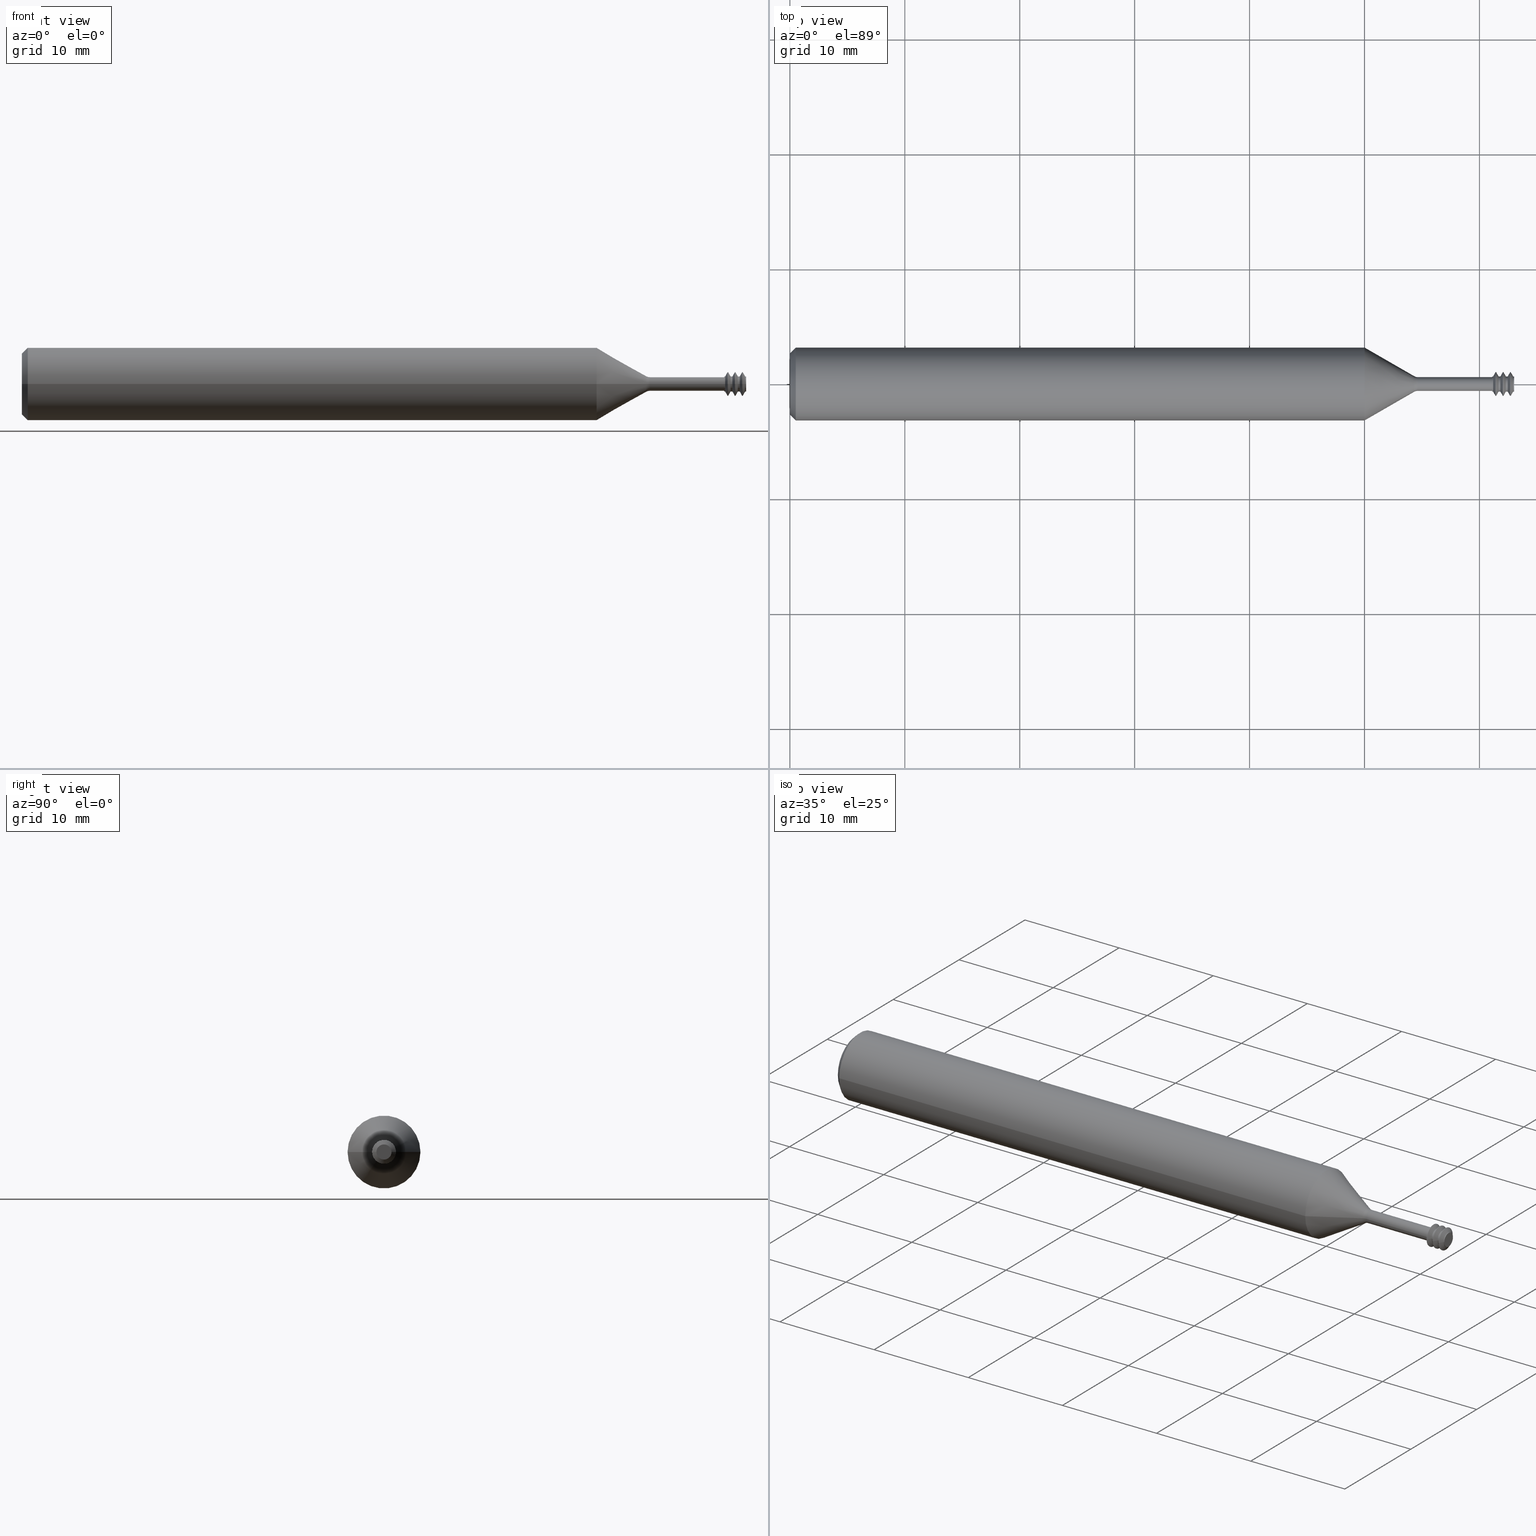
[diagram: canonical four-view strip — front | top / right | iso, engineering-drawing reading convention]
A machine part, canonical four-view strip (front | top / right | iso — engineering-drawing reading convention). The complete STEP part file that produces these views, byte-faithful:
ISO-10303-21;
HEADER;
FILE_DESCRIPTION (( 'STEP AP203' ),
    '1' );
FILE_NAME ('TMLR082-40EL.STEP',
    '2021-09-14T17:58:41',
    ( '' ),
    ( '' ),
    'SwSTEP 2.0',
    'SolidWorks 2020',
    '' );
FILE_SCHEMA (( 'CONFIG_CONTROL_DESIGN' ));
ENDSEC;

DATA;
#1 = FACE_OUTER_BOUND ( 'NONE', #371, .T. ) ;
#2 = ADVANCED_FACE ( 'NONE', ( #55 ), #694, .T. ) ;
#3 = DIRECTION ( 'NONE',  ( 0.000000000000000000, 0.000000000000000000, 1.000000000000000000 ) ) ;
#4 = CARTESIAN_POINT ( 'NONE',  ( 2.409125000000000405, 0.02590937983822152318, 3.172983908677094853E-18 ) ) ;
#5 = ORIENTED_EDGE ( 'NONE', *, *, #823, .F. ) ;
#6 = CARTESIAN_POINT ( 'NONE',  ( 2.459125000000000671, 3.620291162540492838E-18, 0.000000000000000000 ) ) ;
#7 = ORIENTED_EDGE ( 'NONE', *, *, #409, .F. ) ;
#8 = FACE_OUTER_BOUND ( 'NONE', #951, .T. ) ;
#9 = AXIS2_PLACEMENT_3D ( 'NONE', #674, #1001, #118 ) ;
#10 = AXIS2_PLACEMENT_3D ( 'NONE', #468, #402, #708 ) ;
#11 = DATE_AND_TIME ( #1054, #244 ) ;
#12 = ADVANCED_FACE ( 'NONE', ( #1022 ), #199, .T. ) ;
#13 = AXIS2_PLACEMENT_3D ( 'NONE', #320, #331, #220 ) ;
#14 = CARTESIAN_POINT ( 'NONE',  ( 2.419250000000000345, 3.752386085939393770E-18, 0.000000000000000000 ) ) ;
#15 = EDGE_LOOP ( 'NONE', ( #411, #431 ) ) ;
#16 = LINE ( 'NONE', #249, #132 ) ;
#17 = DIRECTION ( 'NONE',  ( 0.000000000000000000, -1.000000000000000000, 0.000000000000000000 ) ) ;
#18 = CARTESIAN_POINT ( 'NONE',  ( 2.427874999999999783, 3.723813829781012394E-18, 0.000000000000000000 ) ) ;
#19 = VERTEX_POINT ( 'NONE', #395 ) ;
#20 = CC_DESIGN_DATE_AND_TIME_ASSIGNMENT ( #184, #683, ( #895 ) ) ;
#21 = EDGE_CURVE ( 'NONE', #332, #702, #214, .T. ) ;
#22 = PERSON_AND_ORGANIZATION_ROLE ( 'creator' ) ;
#23 = DIRECTION ( 'NONE',  ( 0.4962165036752332337, 0.8681988144891280568, 0.000000000000000000 ) ) ;
#24 = AXIS2_PLACEMENT_3D ( 'NONE', #493, #416, #69 ) ;
#25 = FACE_OUTER_BOUND ( 'NONE', #145, .T. ) ;
#26 = ORIENTED_EDGE ( 'NONE', *, *, #539, .T. ) ;
#27 = CARTESIAN_POINT ( 'NONE',  ( 2.356000000000000316, 3.961915964434202595E-18, 0.000000000000000000 ) ) ;
#28 = EDGE_CURVE ( 'NONE', #137, #192, #700, .T. ) ;
#29 = PERSON_AND_ORGANIZATION_ROLE ( 'creator' ) ;
#30 = CYLINDRICAL_SURFACE ( 'NONE', #942, 0.02590937983822151972 ) ;
#31 = AXIS2_PLACEMENT_3D ( 'NONE', #692, #376, #600 ) ;
#32 = LINE ( 'NONE', #362, #626 ) ;
#33 = AXIS2_PLACEMENT_3D ( 'NONE', #185, #1015, #191 ) ;
#34 = ORIENTED_EDGE ( 'NONE', *, *, #807, .T. ) ;
#35 = CIRCLE ( 'NONE', #340, 0.02684936490538899698 ) ;
#36 = COORDINATED_UNIVERSAL_TIME_OFFSET ( 8, 0, .BEHIND. ) ;
#37 = CARTESIAN_POINT ( 'NONE',  ( 2.444250000000000700, 0.04099999999999999478, 5.021051876504147046E-18 ) ) ;
#38 = EDGE_CURVE ( 'NONE', #387, #124, #35, .T. ) ;
#39 = ORIENTED_EDGE ( 'NONE', *, *, #815, .T. ) ;
#40 = ORIENTED_EDGE ( 'NONE', *, *, #343, .T. ) ;
#41 = CARTESIAN_POINT ( 'NONE',  ( 2.406000000000000139, 3.796279696849373925E-18, 0.000000000000000000 ) ) ;
#42 = EDGE_CURVE ( 'NONE', #124, #976, #300, .T. ) ;
#43 = ORIENTED_EDGE ( 'NONE', *, *, #305, .F. ) ;
#44 = DIRECTION ( 'NONE',  ( -1.000000000000000000, 3.312725351696573770E-18, -0.000000000000000000 ) ) ;
#45 = DIRECTION ( 'NONE',  ( -1.000000000000000000, 2.239313081137374464E-19, -0.000000000000000000 ) ) ;
#46 = ORIENTED_EDGE ( 'NONE', *, *, #1024, .F. ) ;
#47 = CARTESIAN_POINT ( 'NONE',  ( 2.444250000000000700, 3.669567952146979050E-18, 0.000000000000000000 ) ) ;
#48 = ADVANCED_FACE ( 'NONE', ( #693 ), #1017, .T. ) ;
#49 = ORIENTED_EDGE ( 'NONE', *, *, #189, .T. ) ;
#50 = CIRCLE ( 'NONE', #307, 0.1048500000000000126 ) ;
#51 = VECTOR ( 'NONE', #454, 39.37007874015748143 ) ;
#52 = CARTESIAN_POINT ( 'NONE',  ( 2.459125000000000671, 0.02590937983822152318, 0.000000000000000000 ) ) ;
#53 = ORIENTED_EDGE ( 'NONE', *, *, #494, .F. ) ;
#54 = ORIENTED_EDGE ( 'NONE', *, *, #42, .T. ) ;
#55 = FACE_OUTER_BOUND ( 'NONE', #284, .T. ) ;
#56 = ORIENTED_EDGE ( 'NONE', *, *, #360, .T. ) ;
#57 = APPROVAL ( #1000, 'UNSPECIFIED' ) ;
#58 = EDGE_CURVE ( 'NONE', #835, #528, #563, .T. ) ;
#59 = CARTESIAN_POINT ( 'NONE',  ( 2.138500000000000068, 4.682433728428207884E-18, 0.000000000000000000 ) ) ;
#60 = CC_DESIGN_APPROVAL ( #370, ( #368 ) ) ;
#61 = ORIENTED_EDGE ( 'NONE', *, *, #311, .F. ) ;
#62 = ORIENTED_EDGE ( 'NONE', *, *, #1029, .T. ) ;
#63 = CARTESIAN_POINT ( 'NONE',  ( 2.442750000000000199, 3.674537040174524642E-18, 0.000000000000000000 ) ) ;
#64 = LINE ( 'NONE', #400, #286 ) ;
#65 = EDGE_LOOP ( 'NONE', ( #491, #1014, #585, #751 ) ) ;
#66 = AXIS2_PLACEMENT_3D ( 'NONE', #915, #651, #977 ) ;
#67 = VECTOR ( 'NONE', #684, 39.37007874015748143 ) ;
#68 = CONICAL_SURFACE ( 'NONE', #763, 0.04099999999999999478, 1.051560874326581851 ) ;
#69 = DIRECTION ( 'NONE',  ( 3.312725351696573770E-18, 1.000000000000000000, 0.000000000000000000 ) ) ;
#70 = EDGE_CURVE ( 'NONE', #857, #275, #102, .T. ) ;
#71 = CARTESIAN_POINT ( 'NONE',  ( 2.467750000000000554, 3.591718906382109922E-18, 0.000000000000000000 ) ) ;
#72 = EDGE_LOOP ( 'NONE', ( #210, #56, #39, #559 ) ) ;
#73 = DIRECTION ( 'NONE',  ( -1.000000000000000000, 2.239313081137374464E-19, -0.000000000000000000 ) ) ;
#74 = CYLINDRICAL_SURFACE ( 'NONE', #621, 0.02590937983822151972 ) ;
#75 = FACE_OUTER_BOUND ( 'NONE', #954, .T. ) ;
#76 = VERTEX_POINT ( 'NONE', #688 ) ;
#77 = SHAPE_DEFINITION_REPRESENTATION ( #937, #1021 ) ;
#78 = CARTESIAN_POINT ( 'NONE',  ( 2.481000000000000316, -0.04100000000000000866, 0.000000000000000000 ) ) ;
#79 = CARTESIAN_POINT ( 'NONE',  ( 2.381000000000000227, 0.02590937983822152318, 3.172983908677094853E-18 ) ) ;
#80 = VERTEX_POINT ( 'NONE', #946 ) ;
#81 = EDGE_CURVE ( 'NONE', #746, #294, #698, .T. ) ;
#82 = ADVANCED_FACE ( 'NONE', ( #541 ), #837, .T. ) ;
#83 = CARTESIAN_POINT ( 'NONE',  ( 2.138500000000000068, -0.02684936490538899351, 0.000000000000000000 ) ) ;
#84 =( CONVERSION_BASED_UNIT ( 'INCH', #992 ) LENGTH_UNIT ( ) NAMED_UNIT ( #628 ) );
#85 = DIRECTION ( 'NONE',  ( -1.000000000000000000, 3.312725351696573770E-18, -0.000000000000000000 ) ) ;
#86 = ORIENTED_EDGE ( 'NONE', *, *, #823, .T. ) ;
#87 = CARTESIAN_POINT ( 'NONE',  ( 2.469250000000000611, 0.04099999999999999478, 5.021051876504147046E-18 ) ) ;
#88 = EDGE_CURVE ( 'NONE', #313, #860, #530, .T. ) ;
#89 = CARTESIAN_POINT ( 'NONE',  ( 2.442750000000000199, 0.04099999999999999478, 5.021051876504147046E-18 ) ) ;
#90 = ORIENTED_EDGE ( 'NONE', *, *, #461, .F. ) ;
#91 = DIRECTION ( 'NONE',  ( -0.4962165036752096969, 0.8681988144891413794, 1.063236899187653683E-16 ) ) ;
#92 = LOCAL_TIME ( 10, 58, 41.00000000000000000, #36 ) ;
#93 = CARTESIAN_POINT ( 'NONE',  ( 2.151000000000000245, 0.000000000000000000, 0.000000000000000000 ) ) ;
#94 = LINE ( 'NONE', #106, #1058 ) ;
#95 = CARTESIAN_POINT ( 'NONE',  ( 2.442750000000000199, -0.04099999999999999478, 0.000000000000000000 ) ) ;
#96 = ORIENTED_EDGE ( 'NONE', *, *, #685, .F. ) ;
#97 = DIRECTION ( 'NONE',  ( -1.000000000000000000, 3.312725351696573770E-18, -0.000000000000000000 ) ) ;
#98 = VECTOR ( 'NONE', #652, 39.37007874015748143 ) ;
#99 = CIRCLE ( 'NONE', #464, 0.02349999999999996189 ) ;
#100 = CC_DESIGN_PERSON_AND_ORGANIZATION_ASSIGNMENT ( #838, #599, ( #610 ) ) ;
#101 = CIRCLE ( 'NONE', #717, 0.02590937983822151972 ) ;
#102 = CIRCLE ( 'NONE', #890, 0.02590937983822151972 ) ;
#103 = CARTESIAN_POINT ( 'NONE',  ( 2.434125000000000316, -0.02590937983822151278, 4.097017892590621527E-18 ) ) ;
#104 = CARTESIAN_POINT ( 'NONE',  ( 2.434125000000000316, 0.02590937983822152318, 0.000000000000000000 ) ) ;
#105 = ORIENTED_EDGE ( 'NONE', *, *, #502, .T. ) ;
#106 = CARTESIAN_POINT ( 'NONE',  ( 2.409125000000000405, -0.02590937983822151278, 3.172983908677094853E-18 ) ) ;
#107 = CARTESIAN_POINT ( 'NONE',  ( 2.477875000000000050, 3.558177562196183725E-18, 0.000000000000000000 ) ) ;
#108 = VERTEX_POINT ( 'NONE', #537 ) ;
#109 = EDGE_CURVE ( 'NONE', #80, #786, #229, .T. ) ;
#110 = DIRECTION ( 'NONE',  ( 0.000000000000000000, -1.000000000000000000, 0.000000000000000000 ) ) ;
#111 = DIRECTION ( 'NONE',  ( 0.000000000000000000, -1.000000000000000000, 0.000000000000000000 ) ) ;
#112 = ORIENTED_EDGE ( 'NONE', *, *, #637, .F. ) ;
#113 = EDGE_CURVE ( 'NONE', #108, #192, #1025, .T. ) ;
#114 = APPLICATION_PROTOCOL_DEFINITION ( 'international standard', 'config_control_design', 1994, #408 ) ;
#115 = CARTESIAN_POINT ( 'NONE',  ( 2.409125000000000405, 3.785927430125321508E-18, 0.000000000000000000 ) ) ;
#116 = VECTOR ( 'NONE', #183, 39.37007874015748143 ) ;
#117 = CARTESIAN_POINT ( 'NONE',  ( 2.481000000000000316, -0.04100000000000000866, 0.000000000000000000 ) ) ;
#118 = DIRECTION ( 'NONE',  ( 0.000000000000000000, 1.000000000000000000, 0.000000000000000000 ) ) ;
#119 = ORIENTED_EDGE ( 'NONE', *, *, #561, .T. ) ;
#120 = EDGE_LOOP ( 'NONE', ( #112, #129, #710, #1048 ) ) ;
#121 = ORIENTED_EDGE ( 'NONE', *, *, #267, .F. ) ;
#122 = EDGE_CURVE ( 'NONE', #405, #976, #235, .T. ) ;
#123 = ORIENTED_EDGE ( 'NONE', *, *, #983, .F. ) ;
#124 = VERTEX_POINT ( 'NONE', #490 ) ;
#125 = CONICAL_SURFACE ( 'NONE', #208, 0.02590937983822151972, 1.051560874326554762 ) ;
#126 = AXIS2_PLACEMENT_3D ( 'NONE', #437, #346, #181 ) ;
#127 = FACE_OUTER_BOUND ( 'NONE', #566, .T. ) ;
#128 = DIRECTION ( 'NONE',  ( -1.000000000000000000, 3.312725351696573770E-18, -0.000000000000000000 ) ) ;
#129 = ORIENTED_EDGE ( 'NONE', *, *, #373, .T. ) ;
#130 = ORIENTED_EDGE ( 'NONE', *, *, #456, .F. ) ;
#131 = EDGE_CURVE ( 'NONE', #835, #80, #315, .T. ) ;
#132 = VECTOR ( 'NONE', #898, 39.37007874015748143 ) ;
#133 = ORIENTED_EDGE ( 'NONE', *, *, #131, .F. ) ;
#134 = ORIENTED_EDGE ( 'NONE', *, *, #81, .F. ) ;
#135 = ORIENTED_EDGE ( 'NONE', *, *, #305, .T. ) ;
#136 = DIRECTION ( 'NONE',  ( 0.000000000000000000, 1.000000000000000000, 0.000000000000000000 ) ) ;
#137 = VERTEX_POINT ( 'NONE', #813 ) ;
#138 = DIRECTION ( 'NONE',  ( -3.312725351696573770E-18, -1.000000000000000000, 0.000000000000000000 ) ) ;
#139 = ADVANCED_FACE ( 'NONE', ( #720 ), #969, .T. ) ;
#140 = EDGE_CURVE ( 'NONE', #788, #263, #808, .T. ) ;
#141 = DIRECTION ( 'NONE',  ( 1.000000000000000000, -3.312725351696573770E-18, 0.000000000000000000 ) ) ;
#142 = LINE ( 'NONE', #79, #645 ) ;
#143 = AXIS2_PLACEMENT_3D ( 'NONE', #308, #281, #630 ) ;
#144 = AXIS2_PLACEMENT_3D ( 'NONE', #341, #522, #844 ) ;
#145 = EDGE_LOOP ( 'NONE', ( #375, #135, #723, #473 ) ) ;
#146 = VECTOR ( 'NONE', #981, 39.37007874015748143 ) ;
#147 = AXIS2_PLACEMENT_3D ( 'NONE', #643, #893, #632 ) ;
#148 = CARTESIAN_POINT ( 'NONE',  ( 2.444250000000000700, 3.669567952146979050E-18, 0.000000000000000000 ) ) ;
#149 = AXIS2_PLACEMENT_3D ( 'NONE', #421, #312, #735 ) ;
#150 = DIRECTION ( 'NONE',  ( -1.000000000000000000, 3.312725351696573770E-18, -0.000000000000000000 ) ) ;
#151 = ADVANCED_FACE ( 'NONE', ( #228 ), #432, .T. ) ;
#152 = CARTESIAN_POINT ( 'NONE',  ( 2.469250000000000611, 3.586749818354565100E-18, 0.000000000000000000 ) ) ;
#153 = ORIENTED_EDGE ( 'NONE', *, *, #594, .F. ) ;
#154 = CARTESIAN_POINT ( 'NONE',  ( 0.02000000000000005940, 0.1248500000000000026, 0.000000000000000000 ) ) ;
#155 = EDGE_CURVE ( 'NONE', #294, #746, #974, .T. ) ;
#156 = LINE ( 'NONE', #495, #516 ) ;
#157 = ORIENTED_EDGE ( 'NONE', *, *, #412, .F. ) ;
#158 = LOCAL_TIME ( 10, 58, 41.00000000000000000, #842 ) ;
#159 = DIRECTION ( 'NONE',  ( -0.4962165036752096969, 0.8681988144891413794, 1.063236899187653683E-16 ) ) ;
#160 = CIRCLE ( 'NONE', #126, 0.04099999999999999478 ) ;
#161 = AXIS2_PLACEMENT_3D ( 'NONE', #871, #469, #633 ) ;
#162 = DIRECTION ( 'NONE',  ( 0.000000000000000000, -1.000000000000000000, 0.000000000000000000 ) ) ;
#163 = ORIENTED_EDGE ( 'NONE', *, *, #222, .T. ) ;
#164 = CIRCLE ( 'NONE', #1003, 0.02500000000000007425 ) ;
#165 = CIRCLE ( 'NONE', #232, 0.02590937983822151972 ) ;
#166 = CARTESIAN_POINT ( 'NONE',  ( 2.406000000000000139, 3.796279696849373925E-18, 0.000000000000000000 ) ) ;
#167 = DIRECTION ( 'NONE',  ( 0.000000000000000000, 1.000000000000000000, 0.000000000000000000 ) ) ;
#168 = EDGE_LOOP ( 'NONE', ( #513, #892, #941, #123 ) ) ;
#169 = CARTESIAN_POINT ( 'NONE',  ( 2.481000000000000316, -7.987212044290486583E-18, 0.000000000000000000 ) ) ;
#170 = EDGE_LOOP ( 'NONE', ( #616, #7, #322, #635 ) ) ;
#171 = CARTESIAN_POINT ( 'NONE',  ( 2.406000000000000139, 3.796279696849373925E-18, 0.000000000000000000 ) ) ;
#172 = PRODUCT_DEFINITION_FORMATION_WITH_SPECIFIED_SOURCE ( 'ANY', '', #610, .NOT_KNOWN. ) ;
#173 = DIRECTION ( 'NONE',  ( -3.312725351696573770E-18, -1.000000000000000000, 0.000000000000000000 ) ) ;
#174 = EDGE_CURVE ( 'NONE', #770, #108, #142, .T. ) ;
#175 = CIRCLE ( 'NONE', #591, 0.04099999999999999478 ) ;
#176 = FACE_OUTER_BOUND ( 'NONE', #168, .T. ) ;
#177 = DIRECTION ( 'NONE',  ( 0.000000000000000000, -1.000000000000000000, 0.000000000000000000 ) ) ;
#178 = ORIENTED_EDGE ( 'NONE', *, *, #70, .F. ) ;
#179 = ADVANCED_FACE ( 'NONE', ( #648 ), #68, .T. ) ;
#180 = CARTESIAN_POINT ( 'NONE',  ( 2.481000000000000316, 3.547825295472131307E-18, 0.000000000000000000 ) ) ;
#181 = DIRECTION ( 'NONE',  ( 0.000000000000000000, -1.000000000000000000, 0.000000000000000000 ) ) ;
#182 = ORIENTED_EDGE ( 'NONE', *, *, #461, .T. ) ;
#183 = DIRECTION ( 'NONE',  ( 0.4962165036752332337, -0.8681988144891280568, 1.063236899187637289E-16 ) ) ;
#184 = DATE_AND_TIME ( #364, #92 ) ;
#185 = CARTESIAN_POINT ( 'NONE',  ( 2.138500000000000068, 4.682433728428207884E-18, 0.000000000000000000 ) ) ;
#186 = DIRECTION ( 'NONE',  ( -1.000000000000000000, 3.312725351696573770E-18, -0.000000000000000000 ) ) ;
#187 = ORIENTED_EDGE ( 'NONE', *, *, #719, .F. ) ;
#188 = CYLINDRICAL_SURFACE ( 'NONE', #955, 0.02349999999999996189 ) ;
#189 = EDGE_CURVE ( 'NONE', #554, #528, #156, .T. ) ;
#190 = CALENDAR_DATE ( 2021, 14, 9 ) ;
#191 = DIRECTION ( 'NONE',  ( 0.000000000000000000, -1.000000000000000000, 0.000000000000000000 ) ) ;
#192 = VERTEX_POINT ( 'NONE', #901 ) ;
#193 = ADVANCED_FACE ( 'NONE', ( #75 ), #417, .T. ) ;
#194 = PERSON_AND_ORGANIZATION ( #774, #524 ) ;
#195 = DIRECTION ( 'NONE',  ( -1.000000000000000000, 3.312725351696573770E-18, -0.000000000000000000 ) ) ;
#196 = AXIS2_PLACEMENT_3D ( 'NONE', #995, #420, #582 ) ;
#197 = CIRCLE ( 'NONE', #798, 0.04099999999999999478 ) ;
#198 = VECTOR ( 'NONE', #852, 39.37007874015748143 ) ;
#199 = CYLINDRICAL_SURFACE ( 'NONE', #535, 0.04100000000000000172 ) ;
#200 = DIRECTION ( 'NONE',  ( -0.4962165036752096969, -0.8681988144891413794, 0.000000000000000000 ) ) ;
#201 = EDGE_LOOP ( 'NONE', ( #914, #452, #796, #872 ) ) ;
#202 = ORIENTED_EDGE ( 'NONE', *, *, #605, .F. ) ;
#203 = CARTESIAN_POINT ( 'NONE',  ( 2.138500000000000068, 0.02684936490538900045, 3.288098879052391398E-18 ) ) ;
#204 = CARTESIAN_POINT ( 'NONE',  ( 2.406000000000000139, -0.02590937983822151278, 0.000000000000000000 ) ) ;
#205 = CC_DESIGN_DATE_AND_TIME_ASSIGNMENT ( #583, #323, ( #368 ) ) ;
#206 = EDGE_CURVE ( 'NONE', #993, #690, #581, .T. ) ;
#207 = ORIENTED_EDGE ( 'NONE', *, *, #800, .T. ) ;
#208 = AXIS2_PLACEMENT_3D ( 'NONE', #963, #973, #811 ) ;
#209 = AXIS2_PLACEMENT_3D ( 'NONE', #888, #663, #982 ) ;
#210 = ORIENTED_EDGE ( 'NONE', *, *, #1029, .F. ) ;
#211 = CARTESIAN_POINT ( 'NONE',  ( 2.481000000000000316, -7.987212044290486583E-18, 0.000000000000000000 ) ) ;
#212 = CIRCLE ( 'NONE', #418, 0.04099999999999999478 ) ;
#213 = CONICAL_SURFACE ( 'NONE', #31, 0.04099999999999999478, 1.051560874326581851 ) ;
#214 = LINE ( 'NONE', #545, #198 ) ;
#215 = ORIENTED_EDGE ( 'NONE', *, *, #28, .T. ) ;
#216 = CIRCLE ( 'NONE', #361, 0.04099999999999999478 ) ;
#217 = DIRECTION ( 'NONE',  ( 0.000000000000000000, 1.000000000000000000, 0.000000000000000000 ) ) ;
#218 = FACE_OUTER_BOUND ( 'NONE', #615, .T. ) ;
#219 = EDGE_CURVE ( 'NONE', #19, #809, #401, .T. ) ;
#220 = DIRECTION ( 'NONE',  ( 0.000000000000000000, -1.000000000000000000, 0.000000000000000000 ) ) ;
#221 = ORIENTED_EDGE ( 'NONE', *, *, #140, .F. ) ;
#222 = EDGE_CURVE ( 'NONE', #248, #746, #817, .T. ) ;
#223 = CARTESIAN_POINT ( 'NONE',  ( 2.406000000000000139, 3.796279696849373925E-18, 0.000000000000000000 ) ) ;
#224 = MANIFOLD_SOLID_BREP ( '821F9EE1-EF3A-4969-8BB4-074549C41CA1-GAAFaceID19', #988 ) ;
#225 = DIRECTION ( 'NONE',  ( -1.000000000000000000, 3.312725351696573770E-18, -0.000000000000000000 ) ) ;
#226 = DIRECTION ( 'NONE',  ( 1.000000000000000000, -3.312725351696573770E-18, 0.000000000000000000 ) ) ;
#227 = CARTESIAN_POINT ( 'NONE',  ( 2.459125000000000671, 3.620291162540492838E-18, 0.000000000000000000 ) ) ;
#228 = FACE_OUTER_BOUND ( 'NONE', #253, .T. ) ;
#229 = CIRCLE ( 'NONE', #781, 0.04099999999999999478 ) ;
#230 = CIRCLE ( 'NONE', #531, 0.02590937983822151972 ) ;
#231 = EDGE_LOOP ( 'NONE', ( #924, #619, #961, #1019 ) ) ;
#232 = AXIS2_PLACEMENT_3D ( 'NONE', #612, #266, #618 ) ;
#233 = VECTOR ( 'NONE', #200, 39.37007874015748143 ) ;
#234 = CARTESIAN_POINT ( 'NONE',  ( 2.469250000000000611, 3.586749818354565100E-18, 0.000000000000000000 ) ) ;
#235 = CIRCLE ( 'NONE', #13, 0.1248500000000000026 ) ;
#236 = DIRECTION ( 'NONE',  ( -1.000000000000000000, 3.312725351696573770E-18, -0.000000000000000000 ) ) ;
#237 = CARTESIAN_POINT ( 'NONE',  ( 2.469250000000000611, -0.04099999999999999478, 0.000000000000000000 ) ) ;
#238 = ORIENTED_EDGE ( 'NONE', *, *, #456, .T. ) ;
#239 = LINE ( 'NONE', #654, #449 ) ;
#240 = CARTESIAN_POINT ( 'NONE',  ( 0.000000000000000000, 0.000000000000000000, 0.000000000000000000 ) ) ;
#241 = EDGE_CURVE ( 'NONE', #862, #835, #795, .T. ) ;
#242 = DIRECTION ( 'NONE',  ( 0.000000000000000000, -1.000000000000000000, 0.000000000000000000 ) ) ;
#243 = ORIENTED_EDGE ( 'NONE', *, *, #113, .T. ) ;
#244 = LOCAL_TIME ( 10, 58, 41.00000000000000000, #911 ) ;
#245 = CARTESIAN_POINT ( 'NONE',  ( 2.138500000000000068, 4.682433728428207884E-18, 0.000000000000000000 ) ) ;
#246 = EDGE_CURVE ( 'NONE', #597, #958, #614, .T. ) ;
#247 = DIRECTION ( 'NONE',  ( -1.000000000000000000, 3.312725351696573770E-18, -0.000000000000000000 ) ) ;
#248 = VERTEX_POINT ( 'NONE', #4 ) ;
#249 = CARTESIAN_POINT ( 'NONE',  ( 2.331000000000000405, 0.02590937983822152318, 3.172983908677094853E-18 ) ) ;
#250 = AXIS2_PLACEMENT_3D ( 'NONE', #757, #350, #463 ) ;
#251 = VECTOR ( 'NONE', #550, 39.37007874015748143 ) ;
#252 = DIRECTION ( 'NONE',  ( -1.000000000000000000, 3.312725351696573770E-18, -0.000000000000000000 ) ) ;
#253 = EDGE_LOOP ( 'NONE', ( #691, #26, #336, #458 ) ) ;
#254 = EDGE_CURVE ( 'NONE', #857, #298, #64, .T. ) ;
#255 = ADVANCED_FACE ( 'NONE', ( #176 ), #745, .T. ) ;
#256 = LINE ( 'NONE', #492, #759 ) ;
#257 = DIRECTION ( 'NONE',  ( -1.000000000000000000, 3.312725351696573770E-18, -0.000000000000000000 ) ) ;
#258 = ORIENTED_EDGE ( 'NONE', *, *, #155, .F. ) ;
#259 = DIRECTION ( 'NONE',  ( 0.000000000000000000, -1.000000000000000000, 0.000000000000000000 ) ) ;
#260 = LINE ( 'NONE', #344, #306 ) ;
#261 = EDGE_CURVE ( 'NONE', #985, #294, #94, .T. ) ;
#262 = AXIS2_PLACEMENT_3D ( 'NONE', #59, #303, #709 ) ;
#263 = VERTEX_POINT ( 'NONE', #595 ) ;
#264 = CARTESIAN_POINT ( 'NONE',  ( 2.356000000000000316, -0.02590937983822151278, 0.000000000000000000 ) ) ;
#265 = CALENDAR_DATE ( 2021, 14, 9 ) ;
#266 = DIRECTION ( 'NONE',  ( -1.000000000000000000, 3.312725351696573770E-18, -0.000000000000000000 ) ) ;
#267 = EDGE_CURVE ( 'NONE', #862, #554, #378, .T. ) ;
#268 = DIRECTION ( 'NONE',  ( 0.000000000000000000, -1.000000000000000000, 0.000000000000000000 ) ) ;
#269 = FACE_OUTER_BOUND ( 'NONE', #170, .T. ) ;
#270 = ORIENTED_EDGE ( 'NONE', *, *, #241, .T. ) ;
#271 = CYLINDRICAL_SURFACE ( 'NONE', #714, 0.02590937983822151972 ) ;
#272 = APPROVAL_STATUS ( 'not_yet_approved' ) ;
#273 = DIRECTION ( 'NONE',  ( -1.000000000000000000, 3.312725351696573770E-18, -0.000000000000000000 ) ) ;
#274 = ADVANCED_FACE ( 'NONE', ( #669 ), #870, .T. ) ;
#275 = VERTEX_POINT ( 'NONE', #103 ) ;
#276 = VERTEX_POINT ( 'NONE', #352 ) ;
#277 = COORDINATED_UNIVERSAL_TIME_OFFSET ( 8, 0, .BEHIND. ) ;
#278 = CARTESIAN_POINT ( 'NONE',  ( 0.000000000000000000, 1.176669689303133088E-17, 0.000000000000000000 ) ) ;
#279 = ORIENTED_EDGE ( 'NONE', *, *, #532, .F. ) ;
#280 = FACE_OUTER_BOUND ( 'NONE', #382, .T. ) ;
#281 = DIRECTION ( 'NONE',  ( -1.000000000000000000, 3.312725351696573770E-18, -0.000000000000000000 ) ) ;
#282 = CARTESIAN_POINT ( 'NONE',  ( 2.406000000000000139, 0.1248500000000000026, 1.528971528735470422E-17 ) ) ;
#283 = VECTOR ( 'NONE', #856, 39.37007874015748143 ) ;
#284 = EDGE_LOOP ( 'NONE', ( #821, #1010, #163, #1006 ) ) ;
#285 = DIRECTION ( 'NONE',  ( 0.000000000000000000, -1.000000000000000000, 0.000000000000000000 ) ) ;
#286 = VECTOR ( 'NONE', #1045, 39.37007874015748143 ) ;
#287 = DIRECTION ( 'NONE',  ( 0.000000000000000000, -1.000000000000000000, 0.000000000000000000 ) ) ;
#288 = ORIENTED_EDGE ( 'NONE', *, *, #42, .F. ) ;
#289 = EDGE_CURVE ( 'NONE', #342, #276, #216, .T. ) ;
#290 = DIRECTION ( 'NONE',  ( 0.000000000000000000, 1.000000000000000000, 0.000000000000000000 ) ) ;
#291 = CYLINDRICAL_SURFACE ( 'NONE', #349, 0.1248500000000000026 ) ;
#292 = ORIENTED_EDGE ( 'NONE', *, *, #544, .F. ) ;
#293 = CARTESIAN_POINT ( 'NONE',  ( 2.381000000000000227, -0.02590937983822151278, 0.000000000000000000 ) ) ;
#294 = VERTEX_POINT ( 'NONE', #989 ) ;
#295 = CARTESIAN_POINT ( 'NONE',  ( -3.473392531253858003E-19, -0.1048499999999999988, 1.406506848820735372E-17 ) ) ;
#296 = ADVANCED_FACE ( 'NONE', ( #505 ), #337, .T. ) ;
#297 = CARTESIAN_POINT ( 'NONE',  ( 2.406000000000000139, 3.796279696849373925E-18, 0.000000000000000000 ) ) ;
#298 = VERTEX_POINT ( 'NONE', #89 ) ;
#299 = VECTOR ( 'NONE', #407, 39.37007874015748143 ) ;
#300 = LINE ( 'NONE', #203, #251 ) ;
#301 = EDGE_LOOP ( 'NONE', ( #865, #153, #517, #119 ) ) ;
#302 = DIRECTION ( 'NONE',  ( -1.000000000000000000, 0.000000000000000000, 0.000000000000000000 ) ) ;
#303 = DIRECTION ( 'NONE',  ( -1.000000000000000000, 3.312725351696573770E-18, -0.000000000000000000 ) ) ;
#304 = CIRCLE ( 'NONE', #658, 0.02349999999999996189 ) ;
#305 = EDGE_CURVE ( 'NONE', #76, #501, #1018, .T. ) ;
#306 = VECTOR ( 'NONE', #503, 39.37007874015748143 ) ;
#307 = AXIS2_PLACEMENT_3D ( 'NONE', #278, #391, #869 ) ;
#308 = CARTESIAN_POINT ( 'NONE',  ( 2.417750000000000288, 3.757355173966938591E-18, 0.000000000000000000 ) ) ;
#309 = CARTESIAN_POINT ( 'NONE',  ( 2.151000000000000245, -0.04850000000000000838, 0.000000000000000000 ) ) ;
#310 = DIRECTION ( 'NONE',  ( 0.000000000000000000, -1.000000000000000000, 0.000000000000000000 ) ) ;
#311 = EDGE_CURVE ( 'NONE', #313, #712, #730, .T. ) ;
#312 = DIRECTION ( 'NONE',  ( -1.000000000000000000, 3.312725351696573770E-18, -0.000000000000000000 ) ) ;
#313 = VERTEX_POINT ( 'NONE', #1004 ) ;
#314 = FACE_OUTER_BOUND ( 'NONE', #1053, .T. ) ;
#315 = LINE ( 'NONE', #237, #514 ) ;
#316 = ORIENTED_EDGE ( 'NONE', *, *, #685, .T. ) ;
#317 = VECTOR ( 'NONE', #622, 39.37007874015748854 ) ;
#318 = DIRECTION ( 'NONE',  ( 0.000000000000000000, -0.000000000000000000, -1.000000000000000000 ) ) ;
#319 = DIRECTION ( 'NONE',  ( 0.000000000000000000, -1.000000000000000000, 0.000000000000000000 ) ) ;
#320 = CARTESIAN_POINT ( 'NONE',  ( 1.968757920842117537, 5.244742617304212452E-18, 0.000000000000000000 ) ) ;
#321 = AXIS2_PLACEMENT_3D ( 'NONE', #509, #252, #839 ) ;
#322 = ORIENTED_EDGE ( 'NONE', *, *, #140, .T. ) ;
#323 = DATE_TIME_ROLE ( 'classification_date' ) ;
#324 = AXIS2_PLACEMENT_3D ( 'NONE', #1050, #73, #876 ) ;
#325 = FACE_OUTER_BOUND ( 'NONE', #908, .T. ) ;
#326 = AXIS2_PLACEMENT_3D ( 'NONE', #71, #655, #878 ) ;
#327 = DIRECTION ( 'NONE',  ( -1.000000000000000000, 3.312725351696573770E-18, -0.000000000000000000 ) ) ;
#328 = ORIENTED_EDGE ( 'NONE', *, *, #916, .T. ) ;
#329 = DIRECTION ( 'NONE',  ( 0.000000000000000000, -1.000000000000000000, 0.000000000000000000 ) ) ;
#330 = APPLICATION_PROTOCOL_DEFINITION ( 'international standard', 'config_control_design', 1994, #504 ) ;
#331 = DIRECTION ( 'NONE',  ( -1.000000000000000000, 3.312725351696573770E-18, -0.000000000000000000 ) ) ;
#332 = VERTEX_POINT ( 'NONE', #984 ) ;
#333 = DIRECTION ( 'NONE',  ( -1.000000000000000000, 3.312725351696573770E-18, -0.000000000000000000 ) ) ;
#334 = CIRCLE ( 'NONE', #754, 0.02349999999999993067 ) ;
#335 = EDGE_CURVE ( 'NONE', #958, #597, #868, .T. ) ;
#336 = ORIENTED_EDGE ( 'NONE', *, *, #921, .T. ) ;
#337 = CONICAL_SURFACE ( 'NONE', #144, 0.1248499999999999888, 0.7853981633974466137 ) ;
#338 = LINE ( 'NONE', #991, #905 ) ;
#339 = FACE_OUTER_BOUND ( 'NONE', #72, .T. ) ;
#340 = AXIS2_PLACEMENT_3D ( 'NONE', #783, #777, #1032 ) ;
#341 = CARTESIAN_POINT ( 'NONE',  ( 0.02000000000000005940, 1.170044238599739941E-17, 0.000000000000000000 ) ) ;
#342 = VERTEX_POINT ( 'NONE', #664 ) ;
#343 = EDGE_CURVE ( 'NONE', #276, #342, #212, .T. ) ;
#344 = CARTESIAN_POINT ( 'NONE',  ( 2.481000000000000316, 0.04099999999999999478, 5.021051876504147046E-18 ) ) ;
#345 = CARTESIAN_POINT ( 'NONE',  ( 2.444250000000000700, 3.669567952146979050E-18, 0.000000000000000000 ) ) ;
#346 = DIRECTION ( 'NONE',  ( -1.000000000000000000, 3.312725351696573770E-18, -0.000000000000000000 ) ) ;
#347 = ORIENTED_EDGE ( 'NONE', *, *, #21, .T. ) ;
#348 = PERSON_AND_ORGANIZATION ( #774, #524 ) ;
#349 = AXIS2_PLACEMENT_3D ( 'NONE', #923, #827, #929 ) ;
#350 = DIRECTION ( 'NONE',  ( -1.000000000000000000, 3.312725351696573770E-18, -0.000000000000000000 ) ) ;
#351 = ORIENTED_EDGE ( 'NONE', *, *, #70, .T. ) ;
#352 = CARTESIAN_POINT ( 'NONE',  ( 2.419250000000000345, -0.04099999999999999478, 0.000000000000000000 ) ) ;
#353 = FACE_OUTER_BOUND ( 'NONE', #120, .T. ) ;
#354 = ORIENTED_EDGE ( 'NONE', *, *, #703, .T. ) ;
#355 = AXIS2_PLACEMENT_3D ( 'NONE', #749, #758, #17 ) ;
#356 = AXIS2_PLACEMENT_3D ( 'NONE', #939, #1026, #290 ) ;
#357 = DATE_AND_TIME ( #265, #934 ) ;
#358 = LINE ( 'NONE', #604, #399 ) ;
#359 = APPROVAL ( #272, 'UNSPECIFIED' ) ;
#360 = EDGE_CURVE ( 'NONE', #124, #702, #164, .T. ) ;
#361 = AXIS2_PLACEMENT_3D ( 'NONE', #14, #186, #675 ) ;
#362 = CARTESIAN_POINT ( 'NONE',  ( 2.331000000000000405, -0.02590937983822151278, 0.000000000000000000 ) ) ;
#363 = ORIENTED_EDGE ( 'NONE', *, *, #109, .T. ) ;
#364 = CALENDAR_DATE ( 2021, 14, 9 ) ;
#365 = FACE_OUTER_BOUND ( 'NONE', #506, .T. ) ;
#366 = ORIENTED_EDGE ( 'NONE', *, *, #457, .T. ) ;
#367 = DIRECTION ( 'NONE',  ( 0.000000000000000000, -1.000000000000000000, 0.000000000000000000 ) ) ;
#368 = SECURITY_CLASSIFICATION ( '', '', #520 ) ;
#369 = CONICAL_SURFACE ( 'NONE', #952, 0.04099999999999999478, 1.051560874326581851 ) ;
#370 = APPROVAL ( #434, 'UNSPECIFIED' ) ;
#371 = EDGE_LOOP ( 'NONE', ( #778, #182, #536, #133 ) ) ;
#372 = FACE_OUTER_BOUND ( 'NONE', #660, .T. ) ;
#373 = EDGE_CURVE ( 'NONE', #976, #405, #695, .T. ) ;
#374 = DIRECTION ( 'NONE',  ( -1.000000000000000000, 3.312725351696573770E-18, -0.000000000000000000 ) ) ;
#375 = ORIENTED_EDGE ( 'NONE', *, *, #1038, .F. ) ;
#376 = DIRECTION ( 'NONE',  ( -1.000000000000000000, 3.312725351696573770E-18, -0.000000000000000000 ) ) ;
#377 = AXIS2_PLACEMENT_3D ( 'NONE', #640, #483, #558 ) ;
#378 = CIRCLE ( 'NONE', #646, 0.02590937983822151972 ) ;
#379 = CONICAL_SURFACE ( 'NONE', #578, 0.04099999999999999478, 1.051560874326581851 ) ;
#380 = AXIS2_PLACEMENT_3D ( 'NONE', #148, #704, #1030 ) ;
#381 = DIRECTION ( 'NONE',  ( -1.000000000000000000, 3.312725351696573770E-18, -0.000000000000000000 ) ) ;
#382 = EDGE_LOOP ( 'NONE', ( #292, #347, #157, #221 ) ) ;
#383 = EDGE_CURVE ( 'NONE', #985, #574, #32, .T. ) ;
#384 = CARTESIAN_POINT ( 'NONE',  ( 2.469250000000000611, 0.04099999999999999478, 5.021051876504147046E-18 ) ) ;
#385 = CARTESIAN_POINT ( 'NONE',  ( 2.477875000000000050, -0.02590937983822151278, 0.000000000000000000 ) ) ;
#386 = ORIENTED_EDGE ( 'NONE', *, *, #441, .T. ) ;
#387 = VERTEX_POINT ( 'NONE', #83 ) ;
#388 = EDGE_LOOP ( 'NONE', ( #187, #386, #419, #918 ) ) ;
#389 = EDGE_CURVE ( 'NONE', #137, #770, #230, .T. ) ;
#390 = DESIGN_CONTEXT ( 'detailed design', #408, 'design' ) ;
#391 = DIRECTION ( 'NONE',  ( -1.000000000000000000, 3.312725351696573770E-18, -0.000000000000000000 ) ) ;
#392 = EDGE_CURVE ( 'NONE', #786, #690, #256, .T. ) ;
#393 = DIRECTION ( 'NONE',  ( 1.000000000000000000, -2.239313081137374464E-19, 0.000000000000000000 ) ) ;
#394 = CIRCLE ( 'NONE', #526, 0.02590937983822151972 ) ;
#395 = CARTESIAN_POINT ( 'NONE',  ( 3.473392531253858485E-19, 0.1048500000000000265, 0.000000000000000000 ) ) ;
#396 = ORIENTED_EDGE ( 'NONE', *, *, #373, .F. ) ;
#397 = DIRECTION ( 'NONE',  ( 0.000000000000000000, -1.000000000000000000, 0.000000000000000000 ) ) ;
#398 = VECTOR ( 'NONE', #91, 39.37007874015748143 ) ;
#399 = VECTOR ( 'NONE', #1008, 39.37007874015748143 ) ;
#400 = CARTESIAN_POINT ( 'NONE',  ( 2.434125000000000316, 0.02590937983822152318, 0.000000000000000000 ) ) ;
#401 = CIRCLE ( 'NONE', #925, 0.1048500000000000126 ) ;
#402 = DIRECTION ( 'NONE',  ( 1.000000000000000000, -2.239313081137374464E-19, 0.000000000000000000 ) ) ;
#403 = DIRECTION ( 'NONE',  ( 0.000000000000000000, -1.000000000000000000, 0.000000000000000000 ) ) ;
#404 = CARTESIAN_POINT ( 'NONE',  ( 2.406000000000000139, -0.02590937983822151278, 0.000000000000000000 ) ) ;
#405 = VERTEX_POINT ( 'NONE', #903 ) ;
#406 = CARTESIAN_POINT ( 'NONE',  ( 2.406000000000000139, -0.02349999999999995842, 0.000000000000000000 ) ) ;
#407 = DIRECTION ( 'NONE',  ( -1.000000000000000000, 2.239313081137374464E-19, -0.000000000000000000 ) ) ;
#408 = APPLICATION_CONTEXT ( 'configuration controlled 3d designs of mechanical parts and assemblies' ) ;
#409 = EDGE_CURVE ( 'NONE', #788, #332, #304, .T. ) ;
#410 = DIRECTION ( 'NONE',  ( -1.000000000000000000, 3.312725351696573770E-18, -0.000000000000000000 ) ) ;
#411 = ORIENTED_EDGE ( 'NONE', *, *, #219, .T. ) ;
#412 = EDGE_CURVE ( 'NONE', #263, #702, #833, .T. ) ;
#413 = PERSON_AND_ORGANIZATION ( #774, #524 ) ;
#414 =( GEOMETRIC_REPRESENTATION_CONTEXT ( 3 ) GLOBAL_UNCERTAINTY_ASSIGNED_CONTEXT ( ( #474 ) ) GLOBAL_UNIT_ASSIGNED_CONTEXT ( ( #84, #904, #748 ) ) REPRESENTATION_CONTEXT ( 'NONE', 'WORKASPACE' ) );
#415 = CYLINDRICAL_SURFACE ( 'NONE', #987, 0.02590937983822151972 ) ;
#416 = DIRECTION ( 'NONE',  ( 1.000000000000000000, -3.312725351696573770E-18, 0.000000000000000000 ) ) ;
#417 = CYLINDRICAL_SURFACE ( 'NONE', #661, 0.02590937983822151972 ) ;
#418 = AXIS2_PLACEMENT_3D ( 'NONE', #587, #917, #512 ) ;
#419 = ORIENTED_EDGE ( 'NONE', *, *, #246, .T. ) ;
#420 = DIRECTION ( 'NONE',  ( -1.000000000000000000, 3.312725351696573770E-18, -0.000000000000000000 ) ) ;
#421 = CARTESIAN_POINT ( 'NONE',  ( 0.02000000000000005940, 1.170044238599739941E-17, 0.000000000000000000 ) ) ;
#422 = ORIENTED_EDGE ( 'NONE', *, *, #392, .F. ) ;
#423 = LINE ( 'NONE', #87, #398 ) ;
#424 = ADVANCED_FACE ( 'NONE', ( #1 ), #379, .T. ) ;
#425 = ORIENTED_EDGE ( 'NONE', *, *, #824, .T. ) ;
#426 = APPROVAL_PERSON_ORGANIZATION ( #756, #57, #525 ) ;
#427 = FACE_OUTER_BOUND ( 'NONE', #1028, .T. ) ;
#428 = CIRCLE ( 'NONE', #496, 0.02590937983822151972 ) ;
#429 = CARTESIAN_POINT ( 'NONE',  ( 0.02000000000000005940, 1.170044238599739941E-17, 0.000000000000000000 ) ) ;
#430 = CARTESIAN_POINT ( 'NONE',  ( 2.481000000000000316, -0.02590937983822151278, 0.000000000000000000 ) ) ;
#431 = ORIENTED_EDGE ( 'NONE', *, *, #719, .T. ) ;
#432 = CONICAL_SURFACE ( 'NONE', #832, 0.02590937983822151972, 1.051560874326554762 ) ;
#433 = CARTESIAN_POINT ( 'NONE',  ( 0.02000000000000005940, -0.1248499999999999610, 1.528971528735470422E-17 ) ) ;
#434 = APPROVAL_STATUS ( 'not_yet_approved' ) ;
#435 = EDGE_CURVE ( 'NONE', #248, #1060, #16, .T. ) ;
#436 = DIRECTION ( 'NONE',  ( -4.056918498409499270E-34, -1.224646799147353207E-16, 1.000000000000000000 ) ) ;
#437 = CARTESIAN_POINT ( 'NONE',  ( 2.442750000000000199, 3.674537040174524642E-18, 0.000000000000000000 ) ) ;
#438 = ORIENTED_EDGE ( 'NONE', *, *, #831, .T. ) ;
#439 = DIRECTION ( 'NONE',  ( 1.000000000000000000, -2.239313081137374464E-19, 0.000000000000000000 ) ) ;
#440 = ORIENTED_EDGE ( 'NONE', *, *, #389, .F. ) ;
#441 = EDGE_CURVE ( 'NONE', #809, #597, #507, .T. ) ;
#442 = PERSON_AND_ORGANIZATION ( #774, #524 ) ;
#443 = CONICAL_SURFACE ( 'NONE', #1033, 0.02590937983822151972, 1.051560874326554762 ) ;
#444 = DIRECTION ( 'NONE',  ( 1.000000000000000000, -2.239313081137374464E-19, 0.000000000000000000 ) ) ;
#445 = CARTESIAN_POINT ( 'NONE',  ( 0.02000000000000005940, 1.170044238599739941E-17, 0.000000000000000000 ) ) ;
#446 = DIRECTION ( 'NONE',  ( 0.000000000000000000, -1.000000000000000000, 0.000000000000000000 ) ) ;
#447 = EDGE_LOOP ( 'NONE', ( #540, #354, #523, #86 ) ) ;
#448 = ADVANCED_FACE ( 'NONE', ( #8 ), #920, .T. ) ;
#449 = VECTOR ( 'NONE', #159, 39.37007874015748143 ) ;
#450 = DIRECTION ( 'NONE',  ( -1.000000000000000000, 3.312725351696573770E-18, -0.000000000000000000 ) ) ;
#451 = VECTOR ( 'NONE', #866, 39.37007874015748143 ) ;
#452 = ORIENTED_EDGE ( 'NONE', *, *, #1038, .T. ) ;
#453 = CARTESIAN_POINT ( 'NONE',  ( 2.477875000000000050, 0.02590937983822152318, 3.172983908677094853E-18 ) ) ;
#454 = DIRECTION ( 'NONE',  ( -1.000000000000000000, 2.239313081137374464E-19, -0.000000000000000000 ) ) ;
#455 = LINE ( 'NONE', #863, #731 ) ;
#456 = EDGE_CURVE ( 'NONE', #342, #746, #260, .T. ) ;
#457 = EDGE_CURVE ( 'NONE', #387, #405, #668, .T. ) ;
#458 = ORIENTED_EDGE ( 'NONE', *, *, #254, .F. ) ;
#459 = DIRECTION ( 'NONE',  ( 0.000000000000000000, -1.000000000000000000, 0.000000000000000000 ) ) ;
#460 = ORIENTED_EDGE ( 'NONE', *, *, #502, .F. ) ;
#461 = EDGE_CURVE ( 'NONE', #528, #786, #423, .T. ) ;
#462 = CARTESIAN_POINT ( 'NONE',  ( 2.409125000000000405, 3.785927430125321508E-18, 0.000000000000000000 ) ) ;
#463 = DIRECTION ( 'NONE',  ( 0.000000000000000000, -1.000000000000000000, 0.000000000000000000 ) ) ;
#464 = AXIS2_PLACEMENT_3D ( 'NONE', #847, #682, #919 ) ;
#465 = ADVANCED_FACE ( 'NONE', ( #592 ), #415, .T. ) ;
#466 = CARTESIAN_POINT ( 'NONE',  ( 2.481000000000000316, -7.987212044290486583E-18, 0.000000000000000000 ) ) ;
#467 = ORIENTED_EDGE ( 'NONE', *, *, #254, .T. ) ;
#468 = CARTESIAN_POINT ( 'NONE',  ( 2.406000000000000139, -7.970417196181956951E-18, 0.000000000000000000 ) ) ;
#469 = DIRECTION ( 'NONE',  ( -1.000000000000000000, 3.312725351696573770E-18, -0.000000000000000000 ) ) ;
#470 = ORIENTED_EDGE ( 'NONE', *, *, #412, .T. ) ;
#471 = ORIENTED_EDGE ( 'NONE', *, *, #789, .F. ) ;
#472 = CARTESIAN_POINT ( 'NONE',  ( 2.419250000000000345, 3.752386085939393770E-18, 0.000000000000000000 ) ) ;
#473 = ORIENTED_EDGE ( 'NONE', *, *, #289, .F. ) ;
#474 = UNCERTAINTY_MEASURE_WITH_UNIT (LENGTH_MEASURE( 1.000000000000000082E-05 ), #84, 'distance_accuracy_value', 'NONE');
#475 = ADVANCED_FACE ( 'NONE', ( #427 ), #1056, .T. ) ;
#476 = FACE_BOUND ( 'NONE', #794, .T. ) ;
#477 = FACE_OUTER_BOUND ( 'NONE', #828, .T. ) ;
#478 = DIRECTION ( 'NONE',  ( -1.000000000000000000, 3.312725351696573770E-18, -0.000000000000000000 ) ) ;
#479 = EDGE_CURVE ( 'NONE', #712, #298, #338, .T. ) ;
#480 = CYLINDRICAL_SURFACE ( 'NONE', #967, 0.04100000000000000172 ) ;
#481 = CIRCLE ( 'NONE', #9, 0.02590937983822151972 ) ;
#482 = CIRCLE ( 'NONE', #889, 0.02590937983822151972 ) ;
#483 = DIRECTION ( 'NONE',  ( -1.000000000000000000, 3.312725351696573770E-18, -0.000000000000000000 ) ) ;
#484 = ORIENTED_EDGE ( 'NONE', *, *, #532, .T. ) ;
#485 = VECTOR ( 'NONE', #85, 39.37007874015748143 ) ;
#486 = FACE_OUTER_BOUND ( 'NONE', #804, .T. ) ;
#487 = DIRECTION ( 'NONE',  ( 2.239313081137374464E-19, 1.000000000000000000, 0.000000000000000000 ) ) ;
#488 = PRODUCT_RELATED_PRODUCT_CATEGORY ( 'detail', '', ( #610 ) ) ;
#489 = ADVANCED_FACE ( 'NONE', ( #325 ), #816, .T. ) ;
#490 = CARTESIAN_POINT ( 'NONE',  ( 2.138500000000000068, 0.02684936490538900045, 9.288907083203547422E-18 ) ) ;
#491 = ORIENTED_EDGE ( 'NONE', *, *, #311, .T. ) ;
#492 = CARTESIAN_POINT ( 'NONE',  ( 2.481000000000000316, 0.04099999999999999478, 5.021051876504147046E-18 ) ) ;
#493 = CARTESIAN_POINT ( 'NONE',  ( 1.828541742163614243E-19, 0.1048500000000000126, 0.000000000000000000 ) ) ;
#494 = EDGE_CURVE ( 'NONE', #108, #712, #239, .T. ) ;
#495 = CARTESIAN_POINT ( 'NONE',  ( 2.406000000000000139, 0.02590937983822152318, 3.172983908677094853E-18 ) ) ;
#496 = AXIS2_PLACEMENT_3D ( 'NONE', #18, #665, #177 ) ;
#497 = ORIENTED_EDGE ( 'NONE', *, *, #623, .T. ) ;
#498 = DIRECTION ( 'NONE',  ( -1.000000000000000000, 3.312725351696573770E-18, -0.000000000000000000 ) ) ;
#499 = DIRECTION ( 'NONE',  ( -1.000000000000000000, 3.312725351696573770E-18, -0.000000000000000000 ) ) ;
#500 = AXIS2_PLACEMENT_3D ( 'NONE', #47, #273, #367 ) ;
#501 = VERTEX_POINT ( 'NONE', #511 ) ;
#502 = EDGE_CURVE ( 'NONE', #192, #313, #572, .T. ) ;
#503 = DIRECTION ( 'NONE',  ( -1.000000000000000000, 2.239313081137374464E-19, -0.000000000000000000 ) ) ;
#504 = APPLICATION_CONTEXT ( 'configuration controlled 3d designs of mechanical parts and assemblies' ) ;
#505 = FACE_OUTER_BOUND ( 'NONE', #510, .T. ) ;
#506 = EDGE_LOOP ( 'NONE', ( #948, #589, #34, #470 ) ) ;
#507 = LINE ( 'NONE', #433, #972 ) ;
#508 = APPROVAL_ROLE ( '' ) ;
#509 = CARTESIAN_POINT ( 'NONE',  ( 2.406000000000000139, 3.796279696849373925E-18, 0.000000000000000000 ) ) ;
#510 = EDGE_LOOP ( 'NONE', ( #1041, #653, #760, #686 ) ) ;
#511 = CARTESIAN_POINT ( 'NONE',  ( 2.427874999999999783, -0.02590937983822151278, 0.000000000000000000 ) ) ;
#512 = DIRECTION ( 'NONE',  ( 0.000000000000000000, -1.000000000000000000, 0.000000000000000000 ) ) ;
#513 = ORIENTED_EDGE ( 'NONE', *, *, #122, .T. ) ;
#514 = VECTOR ( 'NONE', #896, 39.37007874015748143 ) ;
#515 = CARTESIAN_POINT ( 'NONE',  ( 2.406000000000000139, 0.02590937983822152318, 3.172983908677094853E-18 ) ) ;
#516 = VECTOR ( 'NONE', #803, 39.37007874015748143 ) ;
#517 = ORIENTED_EDGE ( 'NONE', *, *, #672, .T. ) ;
#518 = EDGE_LOOP ( 'NONE', ( #930, #670, #61, #460 ) ) ;
#519 = LINE ( 'NONE', #529, #116 ) ;
#520 = SECURITY_CLASSIFICATION_LEVEL ( 'unclassified' ) ;
#521 = FACE_OUTER_BOUND ( 'NONE', #902, .T. ) ;
#522 = DIRECTION ( 'NONE',  ( 1.000000000000000000, -3.312725351696573770E-18, 0.000000000000000000 ) ) ;
#523 = ORIENTED_EDGE ( 'NONE', *, *, #383, .T. ) ;
#524 = ORGANIZATION ( 'UNSPECIFIED', 'UNSPECIFIED', '' ) ;
#525 = APPROVAL_ROLE ( '' ) ;
#526 = AXIS2_PLACEMENT_3D ( 'NONE', #223, #956, #217 ) ;
#527 = CARTESIAN_POINT ( 'NONE',  ( 2.467750000000000554, 0.04099999999999999478, 0.000000000000000000 ) ) ;
#528 = VERTEX_POINT ( 'NONE', #453 ) ;
#529 = CARTESIAN_POINT ( 'NONE',  ( 2.434125000000000316, -0.02590937983822151278, 3.172983908677094853E-18 ) ) ;
#530 = LINE ( 'NONE', #117, #51 ) ;
#531 = AXIS2_PLACEMENT_3D ( 'NONE', #6, #333, #819 ) ;
#532 = EDGE_CURVE ( 'NONE', #275, #501, #671, .T. ) ;
#533 = DIRECTION ( 'NONE',  ( -1.000000000000000000, 3.312725351696573770E-18, -0.000000000000000000 ) ) ;
#534 = AXIS2_PLACEMENT_3D ( 'NONE', #234, #567, #552 ) ;
#535 = AXIS2_PLACEMENT_3D ( 'NONE', #466, #45, #459 ) ;
#536 = ORIENTED_EDGE ( 'NONE', *, *, #109, .F. ) ;
#537 = CARTESIAN_POINT ( 'NONE',  ( 2.452875000000000139, 0.02590937983822152318, 3.172983908677094853E-18 ) ) ;
#538 = FACE_OUTER_BOUND ( 'NONE', #447, .T. ) ;
#539 = EDGE_CURVE ( 'NONE', #275, #860, #519, .T. ) ;
#540 = ORIENTED_EDGE ( 'NONE', *, *, #435, .F. ) ;
#541 = FACE_OUTER_BOUND ( 'NONE', #1039, .T. ) ;
#542 = LINE ( 'NONE', #769, #233 ) ;
#543 = CIRCLE ( 'NONE', #792, 0.02590937983822151972 ) ;
#544 = EDGE_CURVE ( 'NONE', #332, #788, #99, .T. ) ;
#545 = CARTESIAN_POINT ( 'NONE',  ( 2.406000000000000139, 0.02349999999999996883, 2.877919977996275975E-18 ) ) ;
#546 = ORIENTED_EDGE ( 'NONE', *, *, #539, .F. ) ;
#547 = DIRECTION ( 'NONE',  ( -1.000000000000000000, 2.239313081137374464E-19, -0.000000000000000000 ) ) ;
#548 = AXIS2_PLACEMENT_3D ( 'NONE', #245, #498, #742 ) ;
#549 = ADVANCED_FACE ( 'NONE', ( #761 ), #271, .T. ) ;
#550 = DIRECTION ( 'NONE',  ( -0.8660254037844368202, 0.5000000000000031086, 6.123233995736804246E-17 ) ) ;
#551 = ORIENTED_EDGE ( 'NONE', *, *, #789, .T. ) ;
#552 = DIRECTION ( 'NONE',  ( 0.000000000000000000, -1.000000000000000000, 0.000000000000000000 ) ) ;
#553 = CARTESIAN_POINT ( 'NONE',  ( 2.444250000000000700, 3.669567952146979050E-18, 0.000000000000000000 ) ) ;
#554 = VERTEX_POINT ( 'NONE', #931 ) ;
#555 = ADVANCED_FACE ( 'NONE', ( #280 ), #188, .T. ) ;
#556 = LINE ( 'NONE', #799, #1034 ) ;
#557 = AXIS2_PLACEMENT_3D ( 'NONE', #957, #393, #487 ) ;
#558 = DIRECTION ( 'NONE',  ( 0.000000000000000000, -1.000000000000000000, 0.000000000000000000 ) ) ;
#559 = ORIENTED_EDGE ( 'NONE', *, *, #807, .F. ) ;
#560 = CC_DESIGN_PERSON_AND_ORGANIZATION_ASSIGNMENT ( #442, #29, ( #895 ) ) ;
#561 = EDGE_CURVE ( 'NONE', #690, #993, #197, .T. ) ;
#562 = CYLINDRICAL_SURFACE ( 'NONE', #209, 0.02590937983822151972 ) ;
#563 = CIRCLE ( 'NONE', #971, 0.02590937983822151972 ) ;
#564 = AXIS2_PLACEMENT_3D ( 'NONE', #445, #577, #268 ) ;
#565 = CARTESIAN_POINT ( 'NONE',  ( 2.409125000000000405, 0.02590937983822152318, 0.000000000000000000 ) ) ;
#566 = EDGE_LOOP ( 'NONE', ( #288, #62, #366, #396 ) ) ;
#567 = DIRECTION ( 'NONE',  ( -1.000000000000000000, 3.312725351696573770E-18, -0.000000000000000000 ) ) ;
#568 = FACE_OUTER_BOUND ( 'NONE', #15, .T. ) ;
#569 = ADVANCED_FACE ( 'NONE', ( #372 ), #213, .T. ) ;
#570 = DIRECTION ( 'NONE',  ( 0.000000000000000000, 1.000000000000000000, 0.000000000000000000 ) ) ;
#571 = ORIENTED_EDGE ( 'NONE', *, *, #267, .T. ) ;
#572 = LINE ( 'NONE', #734, #146 ) ;
#573 = DIRECTION ( 'NONE',  ( 0.000000000000000000, -1.000000000000000000, 0.000000000000000000 ) ) ;
#574 = VERTEX_POINT ( 'NONE', #204 ) ;
#575 = DIRECTION ( 'NONE',  ( 1.000000000000000000, -2.239313081137374464E-19, 0.000000000000000000 ) ) ;
#576 = DIRECTION ( 'NONE',  ( -1.000000000000000000, 3.312725351696573770E-18, -0.000000000000000000 ) ) ;
#577 = DIRECTION ( 'NONE',  ( -1.000000000000000000, 3.312725351696573770E-18, -0.000000000000000000 ) ) ;
#578 = AXIS2_PLACEMENT_3D ( 'NONE', #910, #97, #986 ) ;
#579 = ORIENTED_EDGE ( 'NONE', *, *, #58, .F. ) ;
#580 = ADVANCED_FACE ( 'NONE', ( #933 ), #887, .T. ) ;
#581 = CIRCLE ( 'NONE', #326, 0.04099999999999999478 ) ;
#582 = DIRECTION ( 'NONE',  ( 0.000000000000000000, -1.000000000000000000, 0.000000000000000000 ) ) ;
#583 = DATE_AND_TIME ( #677, #158 ) ;
#584 = DIRECTION ( 'NONE',  ( 1.000000000000000000, -3.312725351696573770E-18, 0.000000000000000000 ) ) ;
#585 = ORIENTED_EDGE ( 'NONE', *, *, #921, .F. ) ;
#586 = CARTESIAN_POINT ( 'NONE',  ( 2.138500000000000068, -0.02684936490538899351, 0.000000000000000000 ) ) ;
#587 = CARTESIAN_POINT ( 'NONE',  ( 2.419250000000000345, 3.752386085939393770E-18, 0.000000000000000000 ) ) ;
#588 = DIRECTION ( 'NONE',  ( -1.000000000000000000, 3.312725351696573770E-18, -0.000000000000000000 ) ) ;
#589 = ORIENTED_EDGE ( 'NONE', *, *, #38, .F. ) ;
#590 = LOCAL_TIME ( 10, 58, 41.00000000000000000, #607 ) ;
#591 = AXIS2_PLACEMENT_3D ( 'NONE', #63, #225, #319 ) ;
#592 = FACE_OUTER_BOUND ( 'NONE', #883, .T. ) ;
#593 = ADVANCED_FACE ( 'NONE', ( #696 ), #940, .T. ) ;
#594 = EDGE_CURVE ( 'NONE', #770, #137, #165, .T. ) ;
#595 = CARTESIAN_POINT ( 'NONE',  ( 2.151000000000000245, -0.02349999999999992373, 0.000000000000000000 ) ) ;
#596 = CARTESIAN_POINT ( 'NONE',  ( 2.419250000000000345, 3.752386085939393770E-18, 0.000000000000000000 ) ) ;
#597 = VERTEX_POINT ( 'NONE', #855 ) ;
#598 = AXIS2_PLACEMENT_3D ( 'NONE', #739, #247, #912 ) ;
#599 = PERSON_AND_ORGANIZATION_ROLE ( 'design_owner' ) ;
#600 = DIRECTION ( 'NONE',  ( 0.000000000000000000, -1.000000000000000000, 0.000000000000000000 ) ) ;
#601 = EDGE_LOOP ( 'NONE', ( #5, #699 ) ) ;
#602 = DIRECTION ( 'NONE',  ( 0.000000000000000000, -1.000000000000000000, 0.000000000000000000 ) ) ;
#603 = APPROVAL_DATE_TIME ( #938, #57 ) ;
#604 = CARTESIAN_POINT ( 'NONE',  ( 2.481000000000000316, -0.04100000000000000866, 0.000000000000000000 ) ) ;
#605 = EDGE_CURVE ( 'NONE', #554, #862, #481, .T. ) ;
#606 = ORIENTED_EDGE ( 'NONE', *, *, #831, .F. ) ;
#607 = COORDINATED_UNIVERSAL_TIME_OFFSET ( 8, 0, .BEHIND. ) ;
#608 = CIRCLE ( 'NONE', #639, 0.02500000000000014364 ) ;
#609 = CARTESIAN_POINT ( 'NONE',  ( 2.151000000000000245, 0.000000000000000000, 0.000000000000000000 ) ) ;
#610 = PRODUCT ( 'TMLR082-40EL', 'TMLR082-40EL', '', ( #738 ) ) ;
#611 = ADVANCED_FACE ( 'NONE', ( #521 ), #843, .T. ) ;
#612 = CARTESIAN_POINT ( 'NONE',  ( 2.459125000000000671, 3.620291162540492838E-18, 0.000000000000000000 ) ) ;
#613 = CONICAL_SURFACE ( 'NONE', #33, 0.02684936490538899698, 0.5235987755983024794 ) ;
#614 = CIRCLE ( 'NONE', #149, 0.1248500000000000026 ) ;
#615 = EDGE_LOOP ( 'NONE', ( #676, #775, #497, #897 ) ) ;
#616 = ORIENTED_EDGE ( 'NONE', *, *, #21, .F. ) ;
#617 = ADVANCED_FACE ( 'NONE', ( #127 ), #613, .T. ) ;
#618 = DIRECTION ( 'NONE',  ( 0.000000000000000000, -1.000000000000000000, 0.000000000000000000 ) ) ;
#619 = ORIENTED_EDGE ( 'NONE', *, *, #261, .T. ) ;
#620 = DIRECTION ( 'NONE',  ( -1.000000000000000000, 3.312725351696573770E-18, -0.000000000000000000 ) ) ;
#621 = AXIS2_PLACEMENT_3D ( 'NONE', #724, #150, #403 ) ;
#622 = DIRECTION ( 'NONE',  ( 0.7071067811865486830, 0.7071067811865462405, 0.000000000000000000 ) ) ;
#623 = EDGE_CURVE ( 'NONE', #1060, #574, #101, .T. ) ;
#624 = AXIS2_PLACEMENT_3D ( 'NONE', #211, #547, #310 ) ;
#625 = DIRECTION ( 'NONE',  ( 1.000000000000000000, -3.312725351696573770E-18, 0.000000000000000000 ) ) ;
#626 = VECTOR ( 'NONE', #907, 39.37007874015748143 ) ;
#627 = DIRECTION ( 'NONE',  ( 0.000000000000000000, -1.000000000000000000, 0.000000000000000000 ) ) ;
#628 = DIMENSIONAL_EXPONENTS ( 1.000000000000000000, 0.000000000000000000, 0.000000000000000000, 0.000000000000000000, 0.000000000000000000, 0.000000000000000000, 0.000000000000000000 ) ;
#629 = CIRCLE ( 'NONE', #250, 0.02590937983822151972 ) ;
#630 = DIRECTION ( 'NONE',  ( 0.000000000000000000, -1.000000000000000000, 0.000000000000000000 ) ) ;
#631 = ORIENTED_EDGE ( 'NONE', *, *, #206, .F. ) ;
#632 = DIRECTION ( 'NONE',  ( 0.000000000000000000, -1.000000000000000000, 0.000000000000000000 ) ) ;
#633 = DIRECTION ( 'NONE',  ( 0.000000000000000000, -1.000000000000000000, 0.000000000000000000 ) ) ;
#634 = CARTESIAN_POINT ( 'NONE',  ( 2.381000000000000227, 3.879097830641787875E-18, 0.000000000000000000 ) ) ;
#635 = ORIENTED_EDGE ( 'NONE', *, *, #815, .F. ) ;
#636 = CC_DESIGN_PERSON_AND_ORGANIZATION_ASSIGNMENT ( #194, #22, ( #172 ) ) ;
#637 = EDGE_CURVE ( 'NONE', #976, #958, #678, .T. ) ;
#638 = FACE_OUTER_BOUND ( 'NONE', #301, .T. ) ;
#639 = AXIS2_PLACEMENT_3D ( 'NONE', #309, #318, #302 ) ;
#640 = CARTESIAN_POINT ( 'NONE',  ( 2.417750000000000288, 3.757355173966938591E-18, 0.000000000000000000 ) ) ;
#641 = ORIENTED_EDGE ( 'NONE', *, *, #642, .T. ) ;
#642 = EDGE_CURVE ( 'NONE', #275, #857, #629, .T. ) ;
#643 = CARTESIAN_POINT ( 'NONE',  ( 2.409125000000000405, 3.785927430125321508E-18, 0.000000000000000000 ) ) ;
#644 = CARTESIAN_POINT ( 'NONE',  ( 1.968757920842117537, 0.1248500000000000026, 1.528971528735470422E-17 ) ) ;
#645 = VECTOR ( 'NONE', #478, 39.37007874015748143 ) ;
#646 = AXIS2_PLACEMENT_3D ( 'NONE', #180, #439, #826 ) ;
#647 = VECTOR ( 'NONE', #962, 39.37007874015748143 ) ;
#648 = FACE_OUTER_BOUND ( 'NONE', #1016, .T. ) ;
#649 = ORIENTED_EDGE ( 'NONE', *, *, #457, .F. ) ;
#650 = AXIS2_PLACEMENT_3D ( 'NONE', #462, #625, #874 ) ;
#651 = DIRECTION ( 'NONE',  ( -1.000000000000000000, 2.239313081137374464E-19, -0.000000000000000000 ) ) ;
#652 = DIRECTION ( 'NONE',  ( -1.000000000000000000, 3.312725351696573770E-18, -0.000000000000000000 ) ) ;
#653 = ORIENTED_EDGE ( 'NONE', *, *, #219, .F. ) ;
#654 = CARTESIAN_POINT ( 'NONE',  ( 2.444250000000000700, 0.04099999999999999478, 5.021051876504147046E-18 ) ) ;
#655 = DIRECTION ( 'NONE',  ( -1.000000000000000000, 3.312725351696573770E-18, -0.000000000000000000 ) ) ;
#656 = ORIENTED_EDGE ( 'NONE', *, *, #873, .T. ) ;
#657 = DIRECTION ( 'NONE',  ( -1.000000000000000000, 2.239313081137374464E-19, -0.000000000000000000 ) ) ;
#658 = AXIS2_PLACEMENT_3D ( 'NONE', #171, #575, #829 ) ;
#659 = DIRECTION ( 'NONE',  ( 0.4962165036752332337, -0.8681988144891280568, 1.063236899187637289E-16 ) ) ;
#660 = EDGE_LOOP ( 'NONE', ( #90, #438, #867, #1031 ) ) ;
#661 = AXIS2_PLACEMENT_3D ( 'NONE', #979, #410, #162 ) ;
#662 = DIRECTION ( 'NONE',  ( -1.000000000000000000, 2.239313081137374464E-19, -0.000000000000000000 ) ) ;
#663 = DIRECTION ( 'NONE',  ( -1.000000000000000000, 3.312725351696573770E-18, -0.000000000000000000 ) ) ;
#664 = CARTESIAN_POINT ( 'NONE',  ( 2.419250000000000345, 0.04099999999999999478, 5.021051876504147046E-18 ) ) ;
#665 = DIRECTION ( 'NONE',  ( -1.000000000000000000, 3.312725351696573770E-18, -0.000000000000000000 ) ) ;
#666 = ORIENTED_EDGE ( 'NONE', *, *, #88, .T. ) ;
#667 = EDGE_CURVE ( 'NONE', #501, #276, #542, .T. ) ;
#668 = LINE ( 'NONE', #586, #1005 ) ;
#669 = FACE_OUTER_BOUND ( 'NONE', #388, .T. ) ;
#670 = ORIENTED_EDGE ( 'NONE', *, *, #494, .T. ) ;
#671 = LINE ( 'NONE', #264, #283 ) ;
#672 = EDGE_CURVE ( 'NONE', #770, #690, #455, .T. ) ;
#673 = APPROVAL_ROLE ( '' ) ;
#674 = CARTESIAN_POINT ( 'NONE',  ( 2.481000000000000316, 3.547825295472131307E-18, 0.000000000000000000 ) ) ;
#675 = DIRECTION ( 'NONE',  ( 0.000000000000000000, -1.000000000000000000, 0.000000000000000000 ) ) ;
#676 = ORIENTED_EDGE ( 'NONE', *, *, #776, .T. ) ;
#677 = CALENDAR_DATE ( 2021, 14, 9 ) ;
#678 = LINE ( 'NONE', #282, #67 ) ;
#679 = ADVANCED_FACE ( 'NONE', ( #538 ), #30, .T. ) ;
#680 = ORIENTED_EDGE ( 'NONE', *, *, #594, .T. ) ;
#681 = ORIENTED_EDGE ( 'NONE', *, *, #561, .F. ) ;
#682 = DIRECTION ( 'NONE',  ( 1.000000000000000000, -2.239313081137374464E-19, 0.000000000000000000 ) ) ;
#683 = DATE_TIME_ROLE ( 'creation_date' ) ;
#684 = DIRECTION ( 'NONE',  ( -1.000000000000000000, 3.312725351696573770E-18, -0.000000000000000000 ) ) ;
#685 = EDGE_CURVE ( 'NONE', #80, #993, #358, .T. ) ;
#686 = ORIENTED_EDGE ( 'NONE', *, *, #335, .T. ) ;
#687 = ORIENTED_EDGE ( 'NONE', *, *, #605, .T. ) ;
#688 = CARTESIAN_POINT ( 'NONE',  ( 2.427874999999999783, 0.02590937983822152318, 3.172983908677094853E-18 ) ) ;
#689 = DIRECTION ( 'NONE',  ( 0.000000000000000000, -1.000000000000000000, 0.000000000000000000 ) ) ;
#690 = VERTEX_POINT ( 'NONE', #527 ) ;
#691 = ORIENTED_EDGE ( 'NONE', *, *, #642, .F. ) ;
#692 = CARTESIAN_POINT ( 'NONE',  ( 2.469250000000000611, 3.586749818354565100E-18, 0.000000000000000000 ) ) ;
#693 = FACE_OUTER_BOUND ( 'NONE', #201, .T. ) ;
#694 = CONICAL_SURFACE ( 'NONE', #650, 0.02590937983822151972, 1.051560874326554762 ) ;
#695 = CIRCLE ( 'NONE', #355, 0.1248500000000000026 ) ;
#696 = FACE_OUTER_BOUND ( 'NONE', #231, .T. ) ;
#697 = DIRECTION ( 'NONE',  ( 0.000000000000000000, -1.000000000000000000, 0.000000000000000000 ) ) ;
#698 = CIRCLE ( 'NONE', #143, 0.04099999999999999478 ) ;
#699 = ORIENTED_EDGE ( 'NONE', *, *, #623, .F. ) ;
#700 = LINE ( 'NONE', #293, #451 ) ;
#701 = CC_DESIGN_PERSON_AND_ORGANIZATION_ASSIGNMENT ( #348, #926, ( #172 ) ) ;
#702 = VERTEX_POINT ( 'NONE', #850 ) ;
#703 = EDGE_CURVE ( 'NONE', #248, #985, #482, .T. ) ;
#704 = DIRECTION ( 'NONE',  ( -1.000000000000000000, 3.312725351696573770E-18, -0.000000000000000000 ) ) ;
#705 = ORIENTED_EDGE ( 'NONE', *, *, #174, .F. ) ;
#706 = ORIENTED_EDGE ( 'NONE', *, *, #392, .T. ) ;
#707 = CC_DESIGN_APPROVAL ( #57, ( #172 ) ) ;
#708 = DIRECTION ( 'NONE',  ( 2.239313081137374464E-19, 1.000000000000000000, 0.000000000000000000 ) ) ;
#709 = DIRECTION ( 'NONE',  ( 0.000000000000000000, -1.000000000000000000, 0.000000000000000000 ) ) ;
#710 = ORIENTED_EDGE ( 'NONE', *, *, #983, .T. ) ;
#711 = CARTESIAN_POINT ( 'NONE',  ( 2.477875000000000050, 3.558177562196183725E-18, 0.000000000000000000 ) ) ;
#712 = VERTEX_POINT ( 'NONE', #37 ) ;
#713 = CARTESIAN_POINT ( 'NONE',  ( 2.151000000000000245, 4.641024661532000524E-18, 0.000000000000000000 ) ) ;
#714 = AXIS2_PLACEMENT_3D ( 'NONE', #27, #936, #602 ) ;
#715 = LINE ( 'NONE', #968, #900 ) ;
#716 = ADVANCED_FACE ( 'NONE', ( #365 ), #762, .F. ) ;
#717 = AXIS2_PLACEMENT_3D ( 'NONE', #944, #444, #947 ) ;
#718 = AXIS2_PLACEMENT_3D ( 'NONE', #634, #975, #242 ) ;
#719 = EDGE_CURVE ( 'NONE', #809, #19, #50, .T. ) ;
#720 = FACE_OUTER_BOUND ( 'NONE', #970, .T. ) ;
#721 = LINE ( 'NONE', #154, #317 ) ;
#722 = DIRECTION ( 'NONE',  ( 0.000000000000000000, -1.000000000000000000, 0.000000000000000000 ) ) ;
#723 = ORIENTED_EDGE ( 'NONE', *, *, #667, .T. ) ;
#724 = CARTESIAN_POINT ( 'NONE',  ( 2.331000000000000405, 4.044734098226616544E-18, 0.000000000000000000 ) ) ;
#725 = CIRCLE ( 'NONE', #161, 0.02590937983822151972 ) ;
#726 = DIRECTION ( 'NONE',  ( 0.4962165036752332337, 0.8681988144891280568, 0.000000000000000000 ) ) ;
#727 = ORIENTED_EDGE ( 'NONE', *, *, #409, .T. ) ;
#728 = DIRECTION ( 'NONE',  ( 0.000000000000000000, -1.000000000000000000, 0.000000000000000000 ) ) ;
#729 = CARTESIAN_POINT ( 'NONE',  ( 2.409125000000000405, -0.02590937983822151278, 0.000000000000000000 ) ) ;
#730 = CIRCLE ( 'NONE', #743, 0.04099999999999999478 ) ;
#731 = VECTOR ( 'NONE', #23, 39.37007874015748143 ) ;
#732 = CARTESIAN_POINT ( 'NONE',  ( 2.406000000000000139, -0.02349999999999995842, 0.000000000000000000 ) ) ;
#733 = EDGE_LOOP ( 'NONE', ( #363, #706, #631, #96 ) ) ;
#734 = CARTESIAN_POINT ( 'NONE',  ( 2.444250000000000700, -0.04099999999999999478, 0.000000000000000000 ) ) ;
#735 = DIRECTION ( 'NONE',  ( 0.000000000000000000, -1.000000000000000000, 0.000000000000000000 ) ) ;
#736 = EDGE_LOOP ( 'NONE', ( #546, #178, #467, #656 ) ) ;
#737 = DIRECTION ( 'NONE',  ( -1.000000000000000000, 3.312725351696573770E-18, -0.000000000000000000 ) ) ;
#738 = MECHANICAL_CONTEXT ( 'NONE', #504, 'mechanical' ) ;
#739 = CARTESIAN_POINT ( 'NONE',  ( 2.427874999999999783, 3.723813829781012394E-18, 0.000000000000000000 ) ) ;
#740 = AXIS2_PLACEMENT_3D ( 'NONE', #297, #752, #780 ) ;
#741 = ORIENTED_EDGE ( 'NONE', *, *, #672, .F. ) ;
#742 = DIRECTION ( 'NONE',  ( 0.000000000000000000, -1.000000000000000000, 0.000000000000000000 ) ) ;
#743 = AXIS2_PLACEMENT_3D ( 'NONE', #345, #257, #111 ) ;
#744 = ADVANCED_FACE ( 'NONE', ( #476, #797 ), #966, .F. ) ;
#745 = CYLINDRICAL_SURFACE ( 'NONE', #321, 0.1248500000000000026 ) ;
#746 = VERTEX_POINT ( 'NONE', #790 ) ;
#747 = CIRCLE ( 'NONE', #380, 0.04099999999999999478 ) ;
#748 =( NAMED_UNIT ( * ) SI_UNIT ( $, .STERADIAN. ) SOLID_ANGLE_UNIT ( ) );
#749 = CARTESIAN_POINT ( 'NONE',  ( 1.968757920842117537, 5.244742617304212452E-18, 0.000000000000000000 ) ) ;
#750 = CARTESIAN_POINT ( 'NONE',  ( 2.459125000000000671, -0.02590937983822151278, 3.172983908677094853E-18 ) ) ;
#751 = ORIENTED_EDGE ( 'NONE', *, *, #88, .F. ) ;
#752 = DIRECTION ( 'NONE',  ( -1.000000000000000000, 3.312725351696573770E-18, -0.000000000000000000 ) ) ;
#753 = ORIENTED_EDGE ( 'NONE', *, *, #189, .F. ) ;
#754 = AXIS2_PLACEMENT_3D ( 'NONE', #713, #1042, #627 ) ;
#755 = AXIS2_PLACEMENT_3D ( 'NONE', #93, #576, #173 ) ;
#756 = PERSON_AND_ORGANIZATION ( #774, #524 ) ;
#757 = CARTESIAN_POINT ( 'NONE',  ( 2.434125000000000316, 3.703109296332907558E-18, 0.000000000000000000 ) ) ;
#758 = DIRECTION ( 'NONE',  ( -1.000000000000000000, 3.312725351696573770E-18, -0.000000000000000000 ) ) ;
#759 = VECTOR ( 'NONE', #657, 39.37007874015748143 ) ;
#760 = ORIENTED_EDGE ( 'NONE', *, *, #965, .T. ) ;
#761 = FACE_OUTER_BOUND ( 'NONE', #990, .T. ) ;
#762 = TOROIDAL_SURFACE ( 'NONE', #836, 0.04850000000000000838, 0.02500000000000007425 ) ;
#763 = AXIS2_PLACEMENT_3D ( 'NONE', #553, #1059, #722 ) ;
#764 = PERSON_AND_ORGANIZATION ( #774, #524 ) ;
#765 = DIRECTION ( 'NONE',  ( 0.000000000000000000, -1.000000000000000000, 0.000000000000000000 ) ) ;
#766 = EDGE_CURVE ( 'NONE', #857, #76, #885, .T. ) ;
#767 = ORIENTED_EDGE ( 'NONE', *, *, #241, .F. ) ;
#768 = CARTESIAN_POINT ( 'NONE',  ( 2.406000000000000139, 3.796279696849373925E-18, 0.000000000000000000 ) ) ;
#769 = CARTESIAN_POINT ( 'NONE',  ( 2.419250000000000345, -0.04099999999999999478, 0.000000000000000000 ) ) ;
#770 = VERTEX_POINT ( 'NONE', #52 ) ;
#771 = DIRECTION ( 'NONE',  ( 0.000000000000000000, -1.000000000000000000, 0.000000000000000000 ) ) ;
#772 = CC_DESIGN_SECURITY_CLASSIFICATION ( #368, ( #172 ) ) ;
#773 = ORIENTED_EDGE ( 'NONE', *, *, #479, .F. ) ;
#774 = PERSON ( 'UNSPECIFIED', 'UNSPECIFIED', 'UNSPECIFIED', ('UNSPECIFIED'), ('UNSPECIFIED'), ('UNSPECIFIED') ) ;
#775 = ORIENTED_EDGE ( 'NONE', *, *, #435, .T. ) ;
#776 = EDGE_CURVE ( 'NONE', #985, #248, #906, .T. ) ;
#777 = DIRECTION ( 'NONE',  ( -1.000000000000000000, 3.312725351696573770E-18, -0.000000000000000000 ) ) ;
#778 = ORIENTED_EDGE ( 'NONE', *, *, #58, .T. ) ;
#779 = CIRCLE ( 'NONE', #534, 0.04099999999999999478 ) ;
#780 = DIRECTION ( 'NONE',  ( 0.000000000000000000, -1.000000000000000000, 0.000000000000000000 ) ) ;
#781 = AXIS2_PLACEMENT_3D ( 'NONE', #152, #327, #573 ) ;
#782 = ORIENTED_EDGE ( 'NONE', *, *, #38, .T. ) ;
#783 = CARTESIAN_POINT ( 'NONE',  ( 2.138500000000000068, 4.682433728428207884E-18, 0.000000000000000000 ) ) ;
#784 = ORIENTED_EDGE ( 'NONE', *, *, #864, .F. ) ;
#785 = FACE_OUTER_BOUND ( 'NONE', #733, .T. ) ;
#786 = VERTEX_POINT ( 'NONE', #384 ) ;
#787 = DIRECTION ( 'NONE',  ( 0.000000000000000000, -1.000000000000000000, 0.000000000000000000 ) ) ;
#788 = VERTEX_POINT ( 'NONE', #406 ) ;
#789 = EDGE_CURVE ( 'NONE', #712, #313, #747, .T. ) ;
#790 = CARTESIAN_POINT ( 'NONE',  ( 2.417750000000000288, 0.04099999999999999478, 5.021051876504147046E-18 ) ) ;
#791 = ADVANCED_FACE ( 'NONE', ( #486 ), #805, .T. ) ;
#792 = AXIS2_PLACEMENT_3D ( 'NONE', #107, #588, #446 ) ;
#793 = DIRECTION ( 'NONE',  ( -1.000000000000000000, 2.239313081137374464E-19, -0.000000000000000000 ) ) ;
#794 = EDGE_LOOP ( 'NONE', ( #727, #841 ) ) ;
#795 = LINE ( 'NONE', #404, #485 ) ;
#796 = ORIENTED_EDGE ( 'NONE', *, *, #343, .F. ) ;
#797 = FACE_OUTER_BOUND ( 'NONE', #601, .T. ) ;
#798 = AXIS2_PLACEMENT_3D ( 'NONE', #1020, #44, #285 ) ;
#799 = CARTESIAN_POINT ( 'NONE',  ( 2.419250000000000345, 0.04099999999999999478, 5.021051876504147046E-18 ) ) ;
#800 = EDGE_CURVE ( 'NONE', #786, #80, #779, .T. ) ;
#801 = AXIS2_PLACEMENT_3D ( 'NONE', #41, #533, #689 ) ;
#802 = AXIS2_PLACEMENT_3D ( 'NONE', #949, #861, #960 ) ;
#803 = DIRECTION ( 'NONE',  ( -1.000000000000000000, 3.312725351696573770E-18, -0.000000000000000000 ) ) ;
#804 = EDGE_LOOP ( 'NONE', ( #40, #238, #258, #980 ) ) ;
#805 = CYLINDRICAL_SURFACE ( 'NONE', #324, 0.04100000000000000172 ) ;
#806 = CARTESIAN_POINT ( 'NONE',  ( 2.481000000000000316, -7.987212044290486583E-18, 0.000000000000000000 ) ) ;
#807 = EDGE_CURVE ( 'NONE', #387, #263, #608, .T. ) ;
#808 = LINE ( 'NONE', #732, #98 ) ;
#809 = VERTEX_POINT ( 'NONE', #295 ) ;
#810 = DIRECTION ( 'NONE',  ( 0.7071067811865486830, -0.7071067811865462405, 8.659560562354916834E-17 ) ) ;
#811 = DIRECTION ( 'NONE',  ( 0.000000000000000000, 1.000000000000000000, 0.000000000000000000 ) ) ;
#812 = TOROIDAL_SURFACE ( 'NONE', #755, 0.04850000000000000838, 0.02500000000000007425 ) ;
#813 = CARTESIAN_POINT ( 'NONE',  ( 2.459125000000000671, -0.02590937983822151278, 4.097017892590621527E-18 ) ) ;
#814 = ORIENTED_EDGE ( 'NONE', *, *, #206, .T. ) ;
#815 = EDGE_CURVE ( 'NONE', #702, #263, #334, .T. ) ;
#816 = CYLINDRICAL_SURFACE ( 'NONE', #66, 0.04100000000000000172 ) ;
#817 = LINE ( 'NONE', #565, #943 ) ;
#818 = ORIENTED_EDGE ( 'NONE', *, *, #174, .T. ) ;
#819 = DIRECTION ( 'NONE',  ( 0.000000000000000000, -1.000000000000000000, 0.000000000000000000 ) ) ;
#820 = DIRECTION ( 'NONE',  ( 1.000000000000000000, 0.000000000000000000, 0.000000000000000000 ) ) ;
#821 = ORIENTED_EDGE ( 'NONE', *, *, #261, .F. ) ;
#822 = DIRECTION ( 'NONE',  ( -0.8660254037844368202, -0.5000000000000031086, 0.000000000000000000 ) ) ;
#823 = EDGE_CURVE ( 'NONE', #574, #1060, #394, .T. ) ;
#824 = EDGE_CURVE ( 'NONE', #137, #993, #840, .T. ) ;
#825 = APPROVAL_DATE_TIME ( #11, #370 ) ;
#826 = DIRECTION ( 'NONE',  ( 0.000000000000000000, 1.000000000000000000, 0.000000000000000000 ) ) ;
#827 = DIRECTION ( 'NONE',  ( -1.000000000000000000, 3.312725351696573770E-18, -0.000000000000000000 ) ) ;
#828 = EDGE_LOOP ( 'NONE', ( #571, #687 ) ) ;
#829 = DIRECTION ( 'NONE',  ( 0.000000000000000000, 1.000000000000000000, 0.000000000000000000 ) ) ;
#830 =( LENGTH_UNIT ( ) NAMED_UNIT ( * ) SI_UNIT ( $, .METRE. ) );
#831 = EDGE_CURVE ( 'NONE', #528, #835, #543, .T. ) ;
#832 = AXIS2_PLACEMENT_3D ( 'NONE', #1047, #226, #570 ) ;
#833 = CIRCLE ( 'NONE', #196, 0.02349999999999993067 ) ;
#834 = CARTESIAN_POINT ( 'NONE',  ( 2.151000000000000245, 0.04850000000000000838, 5.939536975864663770E-18 ) ) ;
#835 = VERTEX_POINT ( 'NONE', #385 ) ;
#836 = AXIS2_PLACEMENT_3D ( 'NONE', #609, #195, #880 ) ;
#837 = CONICAL_SURFACE ( 'NONE', #802, 0.02590937983822151972, 1.051560874326554762 ) ;
#838 = PERSON_AND_ORGANIZATION ( #774, #524 ) ;
#839 = DIRECTION ( 'NONE',  ( 0.000000000000000000, -1.000000000000000000, 0.000000000000000000 ) ) ;
#840 = LINE ( 'NONE', #750, #997 ) ;
#841 = ORIENTED_EDGE ( 'NONE', *, *, #544, .T. ) ;
#842 = COORDINATED_UNIVERSAL_TIME_OFFSET ( 8, 0, .BEHIND. ) ;
#843 = CYLINDRICAL_SURFACE ( 'NONE', #801, 0.02590937983822151972 ) ;
#844 = DIRECTION ( 'NONE',  ( 0.000000000000000000, 1.000000000000000000, 0.000000000000000000 ) ) ;
#845 = DIRECTION ( 'NONE',  ( 0.4962165036752332337, -0.8681988144891280568, 1.063236899187637289E-16 ) ) ;
#846 = EDGE_LOOP ( 'NONE', ( #422, #207, #316, #681 ) ) ;
#847 = CARTESIAN_POINT ( 'NONE',  ( 2.406000000000000139, 3.796279696849373925E-18, 0.000000000000000000 ) ) ;
#848 = ADVANCED_FACE ( 'NONE', ( #269 ), #913, .T. ) ;
#849 = PERSON_AND_ORGANIZATION_ROLE ( 'classification_officer' ) ;
#850 = CARTESIAN_POINT ( 'NONE',  ( 2.151000000000000245, 0.02349999999999993414, 3.083009428524334842E-18 ) ) ;
#851 = ORIENTED_EDGE ( 'NONE', *, *, #389, .T. ) ;
#852 = DIRECTION ( 'NONE',  ( -1.000000000000000000, 3.312725351696573770E-18, -0.000000000000000000 ) ) ;
#853 = ADVANCED_FACE ( 'NONE', ( #25 ), #369, .T. ) ;
#854 = AXIS2_PLACEMENT_3D ( 'NONE', #882, #1052, #891 ) ;
#855 = CARTESIAN_POINT ( 'NONE',  ( 0.02000000000000005940, -0.1248499999999999610, 1.528971528735470422E-17 ) ) ;
#856 = DIRECTION ( 'NONE',  ( -1.000000000000000000, 3.312725351696573770E-18, -0.000000000000000000 ) ) ;
#857 = VERTEX_POINT ( 'NONE', #104 ) ;
#858 = CARTESIAN_POINT ( 'NONE',  ( 2.331000000000000405, 4.044734098226616544E-18, 0.000000000000000000 ) ) ;
#859 = ADVANCED_FACE ( 'NONE', ( #353 ), #291, .T. ) ;
#860 = VERTEX_POINT ( 'NONE', #95 ) ;
#861 = DIRECTION ( 'NONE',  ( 1.000000000000000000, -3.312725351696573770E-18, 0.000000000000000000 ) ) ;
#862 = VERTEX_POINT ( 'NONE', #430 ) ;
#863 = CARTESIAN_POINT ( 'NONE',  ( 2.459125000000000671, 0.02590937983822152318, 0.000000000000000000 ) ) ;
#864 = EDGE_CURVE ( 'NONE', #501, #76, #428, .T. ) ;
#865 = ORIENTED_EDGE ( 'NONE', *, *, #824, .F. ) ;
#866 = DIRECTION ( 'NONE',  ( -1.000000000000000000, 3.312725351696573770E-18, -0.000000000000000000 ) ) ;
#867 = ORIENTED_EDGE ( 'NONE', *, *, #131, .T. ) ;
#868 = CIRCLE ( 'NONE', #564, 0.1248500000000000026 ) ;
#869 = DIRECTION ( 'NONE',  ( -3.312725351696573770E-18, -1.000000000000000000, 0.000000000000000000 ) ) ;
#870 = CONICAL_SURFACE ( 'NONE', #1007, 0.1248499999999999888, 0.7853981633974466137 ) ;
#871 = CARTESIAN_POINT ( 'NONE',  ( 2.452875000000000139, 3.640995695988598444E-18, 0.000000000000000000 ) ) ;
#872 = ORIENTED_EDGE ( 'NONE', *, *, #667, .F. ) ;
#873 = EDGE_CURVE ( 'NONE', #298, #860, #160, .T. ) ;
#874 = DIRECTION ( 'NONE',  ( 0.000000000000000000, 1.000000000000000000, 0.000000000000000000 ) ) ;
#875 = ADVANCED_FACE ( 'NONE', ( #477 ), #881, .T. ) ;
#876 = DIRECTION ( 'NONE',  ( 0.000000000000000000, -1.000000000000000000, 0.000000000000000000 ) ) ;
#877 = LINE ( 'NONE', #78, #299 ) ;
#878 = DIRECTION ( 'NONE',  ( 0.000000000000000000, -1.000000000000000000, 0.000000000000000000 ) ) ;
#879 = ORIENTED_EDGE ( 'NONE', *, *, #289, .T. ) ;
#880 = DIRECTION ( 'NONE',  ( -3.312725351696573770E-18, -1.000000000000000000, 0.000000000000000000 ) ) ;
#881 = PLANE ( 'NONE',  #557 ) ;
#882 = CARTESIAN_POINT ( 'NONE',  ( 2.452875000000000139, 3.640995695988598444E-18, 0.000000000000000000 ) ) ;
#883 = EDGE_LOOP ( 'NONE', ( #202, #49, #579, #767 ) ) ;
#884 = AXIS2_PLACEMENT_3D ( 'NONE', #472, #381, #787 ) ;
#885 = LINE ( 'NONE', #1035, #647 ) ;
#886 = ADVANCED_FACE ( 'NONE', ( #785 ), #480, .T. ) ;
#887 = CONICAL_SURFACE ( 'NONE', #500, 0.04099999999999999478, 1.051560874326581851 ) ;
#888 = CARTESIAN_POINT ( 'NONE',  ( 2.356000000000000316, 3.961915964434202595E-18, 0.000000000000000000 ) ) ;
#889 = AXIS2_PLACEMENT_3D ( 'NONE', #115, #450, #765 ) ;
#890 = AXIS2_PLACEMENT_3D ( 'NONE', #1040, #374, #287 ) ;
#891 = DIRECTION ( 'NONE',  ( 0.000000000000000000, -1.000000000000000000, 0.000000000000000000 ) ) ;
#892 = ORIENTED_EDGE ( 'NONE', *, *, #637, .T. ) ;
#893 = DIRECTION ( 'NONE',  ( -1.000000000000000000, 3.312725351696573770E-18, -0.000000000000000000 ) ) ;
#894 = CARTESIAN_POINT ( 'NONE',  ( 0.02000000000000005940, 0.1248500000000000026, 0.000000000000000000 ) ) ;
#895 = PRODUCT_DEFINITION ( 'UNKNOWN', '', #172, #390 ) ;
#896 = DIRECTION ( 'NONE',  ( -0.4962165036752096969, -0.8681988144891413794, 0.000000000000000000 ) ) ;
#897 = ORIENTED_EDGE ( 'NONE', *, *, #383, .F. ) ;
#898 = DIRECTION ( 'NONE',  ( -1.000000000000000000, 3.312725351696573770E-18, -0.000000000000000000 ) ) ;
#899 = CC_DESIGN_APPROVAL ( #359, ( #895 ) ) ;
#900 = VECTOR ( 'NONE', #236, 39.37007874015748143 ) ;
#901 = CARTESIAN_POINT ( 'NONE',  ( 2.452875000000000139, -0.02590937983822151278, 0.000000000000000000 ) ) ;
#902 = EDGE_LOOP ( 'NONE', ( #753, #121, #270, #606 ) ) ;
#903 = CARTESIAN_POINT ( 'NONE',  ( 1.968757920842117537, -0.1248500000000000026, 0.000000000000000000 ) ) ;
#904 =( NAMED_UNIT ( * ) PLANE_ANGLE_UNIT ( ) SI_UNIT ( $, .RADIAN. ) );
#905 = VECTOR ( 'NONE', #1055, 39.37007874015748143 ) ;
#906 = CIRCLE ( 'NONE', #147, 0.02590937983822151972 ) ;
#907 = DIRECTION ( 'NONE',  ( -1.000000000000000000, 3.312725351696573770E-18, -0.000000000000000000 ) ) ;
#908 = EDGE_LOOP ( 'NONE', ( #773, #551, #666, #1009 ) ) ;
#909 = ADVANCED_FACE ( 'NONE', ( #218 ), #74, .T. ) ;
#910 = CARTESIAN_POINT ( 'NONE',  ( 2.469250000000000611, 3.586749818354565100E-18, 0.000000000000000000 ) ) ;
#911 = COORDINATED_UNIVERSAL_TIME_OFFSET ( 8, 0, .BEHIND. ) ;
#912 = DIRECTION ( 'NONE',  ( 0.000000000000000000, -1.000000000000000000, 0.000000000000000000 ) ) ;
#913 = CYLINDRICAL_SURFACE ( 'NONE', #740, 0.02349999999999996189 ) ;
#914 = ORIENTED_EDGE ( 'NONE', *, *, #864, .T. ) ;
#915 = CARTESIAN_POINT ( 'NONE',  ( 2.481000000000000316, -7.987212044290486583E-18, 0.000000000000000000 ) ) ;
#916 = EDGE_CURVE ( 'NONE', #276, #294, #877, .T. ) ;
#917 = DIRECTION ( 'NONE',  ( -1.000000000000000000, 3.312725351696573770E-18, -0.000000000000000000 ) ) ;
#918 = ORIENTED_EDGE ( 'NONE', *, *, #965, .F. ) ;
#919 = DIRECTION ( 'NONE',  ( 0.000000000000000000, 1.000000000000000000, 0.000000000000000000 ) ) ;
#920 = CYLINDRICAL_SURFACE ( 'NONE', #922, 0.04100000000000000172 ) ;
#921 = EDGE_CURVE ( 'NONE', #860, #298, #175, .T. ) ;
#922 = AXIS2_PLACEMENT_3D ( 'NONE', #169, #662, #329 ) ;
#923 = CARTESIAN_POINT ( 'NONE',  ( 2.406000000000000139, 3.796279696849373925E-18, 0.000000000000000000 ) ) ;
#924 = ORIENTED_EDGE ( 'NONE', *, *, #776, .F. ) ;
#925 = AXIS2_PLACEMENT_3D ( 'NONE', #964, #499, #138 ) ;
#926 = PERSON_AND_ORGANIZATION_ROLE ( 'design_supplier' ) ;
#927 = DIRECTION ( 'NONE',  ( -1.000000000000000000, 3.312725351696573770E-18, -0.000000000000000000 ) ) ;
#928 = DIRECTION ( 'NONE',  ( 0.000000000000000000, -1.000000000000000000, -1.224646799147353207E-16 ) ) ;
#929 = DIRECTION ( 'NONE',  ( 0.000000000000000000, -1.000000000000000000, 0.000000000000000000 ) ) ;
#930 = ORIENTED_EDGE ( 'NONE', *, *, #1024, .T. ) ;
#931 = CARTESIAN_POINT ( 'NONE',  ( 2.481000000000000316, 0.02590937983822152318, 3.172983908677094853E-18 ) ) ;
#932 = PERSON_AND_ORGANIZATION ( #774, #524 ) ;
#933 = FACE_OUTER_BOUND ( 'NONE', #518, .T. ) ;
#934 = LOCAL_TIME ( 10, 58, 41.00000000000000000, #277 ) ;
#935 = ORIENTED_EDGE ( 'NONE', *, *, #766, .T. ) ;
#936 = DIRECTION ( 'NONE',  ( -1.000000000000000000, 3.312725351696573770E-18, -0.000000000000000000 ) ) ;
#937 = PRODUCT_DEFINITION_SHAPE ( 'NONE', 'NONE',  #895 ) ;
#938 = DATE_AND_TIME ( #190, #590 ) ;
#939 = CARTESIAN_POINT ( 'NONE',  ( 2.409125000000000405, 3.785927430125321508E-18, 0.000000000000000000 ) ) ;
#940 = CONICAL_SURFACE ( 'NONE', #356, 0.02590937983822151972, 1.051560874326554762 ) ;
#941 = ORIENTED_EDGE ( 'NONE', *, *, #246, .F. ) ;
#942 = AXIS2_PLACEMENT_3D ( 'NONE', #858, #927, #110 ) ;
#943 = VECTOR ( 'NONE', #726, 39.37007874015748143 ) ;
#944 = CARTESIAN_POINT ( 'NONE',  ( 2.406000000000000139, 3.796279696849373925E-18, 0.000000000000000000 ) ) ;
#945 = ORIENTED_EDGE ( 'NONE', *, *, #28, .F. ) ;
#946 = CARTESIAN_POINT ( 'NONE',  ( 2.469250000000000611, -0.04099999999999999478, 0.000000000000000000 ) ) ;
#947 = DIRECTION ( 'NONE',  ( 0.000000000000000000, 1.000000000000000000, 0.000000000000000000 ) ) ;
#948 = ORIENTED_EDGE ( 'NONE', *, *, #360, .F. ) ;
#949 = CARTESIAN_POINT ( 'NONE',  ( 2.459125000000000671, 3.620291162540492838E-18, 0.000000000000000000 ) ) ;
#950 = APPROVAL_PERSON_ORGANIZATION ( #764, #359, #673 ) ;
#951 = EDGE_LOOP ( 'NONE', ( #130, #879, #328, #134 ) ) ;
#952 = AXIS2_PLACEMENT_3D ( 'NONE', #596, #128, #697 ) ;
#953 = CYLINDRICAL_SURFACE ( 'NONE', #624, 0.04100000000000000172 ) ;
#954 = EDGE_LOOP ( 'NONE', ( #851, #818, #46, #945 ) ) ;
#955 = AXIS2_PLACEMENT_3D ( 'NONE', #768, #994, #259 ) ;
#956 = DIRECTION ( 'NONE',  ( 1.000000000000000000, -2.239313081137374464E-19, 0.000000000000000000 ) ) ;
#957 = CARTESIAN_POINT ( 'NONE',  ( 2.481000000000000316, -7.987212044290486583E-18, 0.000000000000000000 ) ) ;
#958 = VERTEX_POINT ( 'NONE', #894 ) ;
#959 = ADVANCED_FACE ( 'NONE', ( #1051 ), #125, .T. ) ;
#960 = DIRECTION ( 'NONE',  ( 0.000000000000000000, 1.000000000000000000, 0.000000000000000000 ) ) ;
#961 = ORIENTED_EDGE ( 'NONE', *, *, #155, .T. ) ;
#962 = DIRECTION ( 'NONE',  ( -1.000000000000000000, 3.312725351696573770E-18, -0.000000000000000000 ) ) ;
#963 = CARTESIAN_POINT ( 'NONE',  ( 2.434125000000000316, 3.703109296332907558E-18, 0.000000000000000000 ) ) ;
#964 = CARTESIAN_POINT ( 'NONE',  ( 0.000000000000000000, 1.176669689303133088E-17, 0.000000000000000000 ) ) ;
#965 = EDGE_CURVE ( 'NONE', #19, #958, #721, .T. ) ;
#966 = PLANE ( 'NONE',  #10 ) ;
#967 = AXIS2_PLACEMENT_3D ( 'NONE', #806, #793, #397 ) ;
#968 = CARTESIAN_POINT ( 'NONE',  ( 2.406000000000000139, -0.1248500000000000026, 0.000000000000000000 ) ) ;
#969 = CYLINDRICAL_SURFACE ( 'NONE', #718, 0.02590937983822151972 ) ;
#970 = EDGE_LOOP ( 'NONE', ( #705, #680, #215, #999 ) ) ;
#971 = AXIS2_PLACEMENT_3D ( 'NONE', #711, #620, #771 ) ;
#972 = VECTOR ( 'NONE', #810, 39.37007874015748854 ) ;
#973 = DIRECTION ( 'NONE',  ( 1.000000000000000000, -3.312725351696573770E-18, 0.000000000000000000 ) ) ;
#974 = CIRCLE ( 'NONE', #377, 0.04099999999999999478 ) ;
#975 = DIRECTION ( 'NONE',  ( -1.000000000000000000, 3.312725351696573770E-18, -0.000000000000000000 ) ) ;
#976 = VERTEX_POINT ( 'NONE', #644 ) ;
#977 = DIRECTION ( 'NONE',  ( 0.000000000000000000, -1.000000000000000000, 0.000000000000000000 ) ) ;
#978 = ADVANCED_FACE ( 'NONE', ( #638 ), #443, .T. ) ;
#979 = CARTESIAN_POINT ( 'NONE',  ( 2.381000000000000227, 3.879097830641787875E-18, 0.000000000000000000 ) ) ;
#980 = ORIENTED_EDGE ( 'NONE', *, *, #916, .F. ) ;
#981 = DIRECTION ( 'NONE',  ( -0.4962165036752096969, -0.8681988144891413794, 0.000000000000000000 ) ) ;
#982 = DIRECTION ( 'NONE',  ( 0.000000000000000000, -1.000000000000000000, 0.000000000000000000 ) ) ;
#983 = EDGE_CURVE ( 'NONE', #405, #597, #715, .T. ) ;
#984 = CARTESIAN_POINT ( 'NONE',  ( 2.406000000000000139, 0.02349999999999996883, 2.877919977996275975E-18 ) ) ;
#985 = VERTEX_POINT ( 'NONE', #729 ) ;
#986 = DIRECTION ( 'NONE',  ( 0.000000000000000000, -1.000000000000000000, 0.000000000000000000 ) ) ;
#987 = AXIS2_PLACEMENT_3D ( 'NONE', #166, #737, #728 ) ;
#988 = CLOSED_SHELL ( 'NONE', ( #555, #1049, #475, #255, #274, #593, #909, #48, #549, #151, #886, #424, #465, #580, #193, #82, #12, #791, #448, #489, #978, #139, #179, #875, #611, #569, #1013, #959, #1044, #853, #679, #2, #1002, #296, #859, #617, #716, #848, #744 ) ) ;
#989 = CARTESIAN_POINT ( 'NONE',  ( 2.417750000000000288, -0.04099999999999999478, 0.000000000000000000 ) ) ;
#990 = EDGE_LOOP ( 'NONE', ( #641, #935, #784, #279 ) ) ;
#991 = CARTESIAN_POINT ( 'NONE',  ( 2.481000000000000316, 0.04099999999999999478, 5.021051876504147046E-18 ) ) ;
#992 = LENGTH_MEASURE_WITH_UNIT ( LENGTH_MEASURE( 0.02539999999999999897 ), #830 );
#993 = VERTEX_POINT ( 'NONE', #1036 ) ;
#994 = DIRECTION ( 'NONE',  ( -1.000000000000000000, 3.312725351696573770E-18, -0.000000000000000000 ) ) ;
#995 = CARTESIAN_POINT ( 'NONE',  ( 2.151000000000000245, 4.641024661532000524E-18, 0.000000000000000000 ) ) ;
#996 = AXIS2_PLACEMENT_3D ( 'NONE', #240, #3, #820 ) ;
#997 = VECTOR ( 'NONE', #845, 39.37007874015748143 ) ;
#998 = CIRCLE ( 'NONE', #262, 0.02684936490538899698 ) ;
#999 = ORIENTED_EDGE ( 'NONE', *, *, #113, .F. ) ;
#1000 = APPROVAL_STATUS ( 'not_yet_approved' ) ;
#1001 = DIRECTION ( 'NONE',  ( 1.000000000000000000, -2.239313081137374464E-19, 0.000000000000000000 ) ) ;
#1002 = ADVANCED_FACE ( 'NONE', ( #568 ), #1043, .F. ) ;
#1003 = AXIS2_PLACEMENT_3D ( 'NONE', #834, #436, #928 ) ;
#1004 = CARTESIAN_POINT ( 'NONE',  ( 2.444250000000000700, -0.04099999999999999478, 0.000000000000000000 ) ) ;
#1005 = VECTOR ( 'NONE', #822, 39.37007874015748143 ) ;
#1006 = ORIENTED_EDGE ( 'NONE', *, *, #81, .T. ) ;
#1007 = AXIS2_PLACEMENT_3D ( 'NONE', #429, #584, #167 ) ;
#1008 = DIRECTION ( 'NONE',  ( -1.000000000000000000, 2.239313081137374464E-19, -0.000000000000000000 ) ) ;
#1009 = ORIENTED_EDGE ( 'NONE', *, *, #873, .F. ) ;
#1010 = ORIENTED_EDGE ( 'NONE', *, *, #703, .F. ) ;
#1011 = APPROVAL_DATE_TIME ( #357, #359 ) ;
#1012 = APPROVAL_PERSON_ORGANIZATION ( #413, #370, #508 ) ;
#1013 = ADVANCED_FACE ( 'NONE', ( #1057 ), #953, .T. ) ;
#1014 = ORIENTED_EDGE ( 'NONE', *, *, #479, .T. ) ;
#1015 = DIRECTION ( 'NONE',  ( -1.000000000000000000, 3.312725351696573770E-18, -0.000000000000000000 ) ) ;
#1016 = EDGE_LOOP ( 'NONE', ( #53, #243, #105, #471 ) ) ;
#1017 = CONICAL_SURFACE ( 'NONE', #884, 0.04099999999999999478, 1.051560874326581851 ) ;
#1018 = CIRCLE ( 'NONE', #598, 0.02590937983822151972 ) ;
#1019 = ORIENTED_EDGE ( 'NONE', *, *, #222, .F. ) ;
#1020 = CARTESIAN_POINT ( 'NONE',  ( 2.467750000000000554, 3.591718906382109922E-18, 0.000000000000000000 ) ) ;
#1021 = ADVANCED_BREP_SHAPE_REPRESENTATION ( 'TMLR082-40EL', ( #224, #996 ), #414 ) ;
#1022 = FACE_OUTER_BOUND ( 'NONE', #65, .T. ) ;
#1023 = ORIENTED_EDGE ( 'NONE', *, *, #766, .F. ) ;
#1024 = EDGE_CURVE ( 'NONE', #192, #108, #725, .T. ) ;
#1025 = CIRCLE ( 'NONE', #854, 0.02590937983822151972 ) ;
#1026 = DIRECTION ( 'NONE',  ( 1.000000000000000000, -3.312725351696573770E-18, 0.000000000000000000 ) ) ;
#1027 = ORIENTED_EDGE ( 'NONE', *, *, #122, .F. ) ;
#1028 = EDGE_LOOP ( 'NONE', ( #782, #54, #1027, #649 ) ) ;
#1029 = EDGE_CURVE ( 'NONE', #124, #387, #998, .T. ) ;
#1030 = DIRECTION ( 'NONE',  ( 0.000000000000000000, -1.000000000000000000, 0.000000000000000000 ) ) ;
#1031 = ORIENTED_EDGE ( 'NONE', *, *, #800, .F. ) ;
#1032 = DIRECTION ( 'NONE',  ( 0.000000000000000000, -1.000000000000000000, 0.000000000000000000 ) ) ;
#1033 = AXIS2_PLACEMENT_3D ( 'NONE', #227, #141, #136 ) ;
#1034 = VECTOR ( 'NONE', #1046, 39.37007874015748143 ) ;
#1035 = CARTESIAN_POINT ( 'NONE',  ( 2.356000000000000316, 0.02590937983822152318, 3.172983908677094853E-18 ) ) ;
#1036 = CARTESIAN_POINT ( 'NONE',  ( 2.467750000000000554, -0.04099999999999999478, 5.021051876504147046E-18 ) ) ;
#1037 = CC_DESIGN_PERSON_AND_ORGANIZATION_ASSIGNMENT ( #932, #849, ( #368 ) ) ;
#1038 = EDGE_CURVE ( 'NONE', #76, #342, #556, .T. ) ;
#1039 = EDGE_LOOP ( 'NONE', ( #440, #425, #814, #741 ) ) ;
#1040 = CARTESIAN_POINT ( 'NONE',  ( 2.434125000000000316, 3.703109296332907558E-18, 0.000000000000000000 ) ) ;
#1041 = ORIENTED_EDGE ( 'NONE', *, *, #441, .F. ) ;
#1042 = DIRECTION ( 'NONE',  ( -1.000000000000000000, 3.312725351696573770E-18, -0.000000000000000000 ) ) ;
#1043 = PLANE ( 'NONE',  #24 ) ;
#1044 = ADVANCED_FACE ( 'NONE', ( #314 ), #562, .T. ) ;
#1045 = DIRECTION ( 'NONE',  ( 0.4962165036752332337, 0.8681988144891280568, 0.000000000000000000 ) ) ;
#1046 = DIRECTION ( 'NONE',  ( -0.4962165036752096969, 0.8681988144891413794, 1.063236899187653683E-16 ) ) ;
#1047 = CARTESIAN_POINT ( 'NONE',  ( 2.434125000000000316, 3.703109296332907558E-18, 0.000000000000000000 ) ) ;
#1048 = ORIENTED_EDGE ( 'NONE', *, *, #335, .F. ) ;
#1049 = ADVANCED_FACE ( 'NONE', ( #339 ), #812, .F. ) ;
#1050 = CARTESIAN_POINT ( 'NONE',  ( 2.481000000000000316, -7.987212044290486583E-18, 0.000000000000000000 ) ) ;
#1051 = FACE_OUTER_BOUND ( 'NONE', #736, .T. ) ;
#1052 = DIRECTION ( 'NONE',  ( -1.000000000000000000, 3.312725351696573770E-18, -0.000000000000000000 ) ) ;
#1053 = EDGE_LOOP ( 'NONE', ( #1023, #351, #484, #43 ) ) ;
#1054 = CALENDAR_DATE ( 2021, 14, 9 ) ;
#1055 = DIRECTION ( 'NONE',  ( -1.000000000000000000, 2.239313081137374464E-19, -0.000000000000000000 ) ) ;
#1056 = CONICAL_SURFACE ( 'NONE', #548, 0.02684936490538899698, 0.5235987755983024794 ) ;
#1057 = FACE_OUTER_BOUND ( 'NONE', #846, .T. ) ;
#1058 = VECTOR ( 'NONE', #659, 39.37007874015748143 ) ;
#1059 = DIRECTION ( 'NONE',  ( -1.000000000000000000, 3.312725351696573770E-18, -0.000000000000000000 ) ) ;
#1060 = VERTEX_POINT ( 'NONE', #515 ) ;
ENDSEC;
END-ISO-10303-21;
